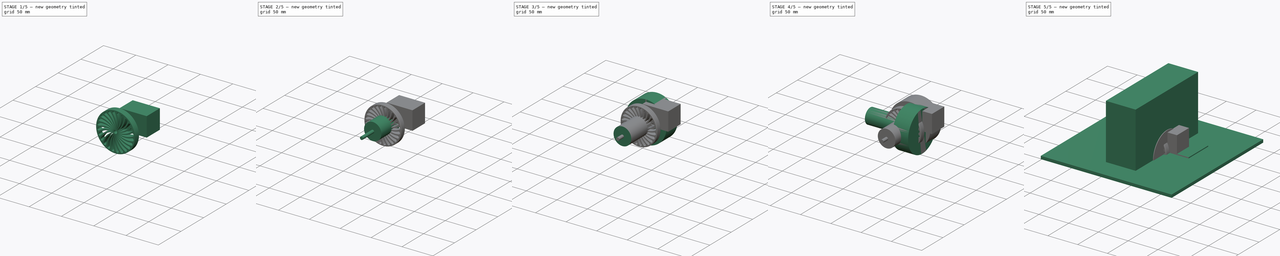
[diagram: build sequence overview — one tinted view per stage of 5, left to right]
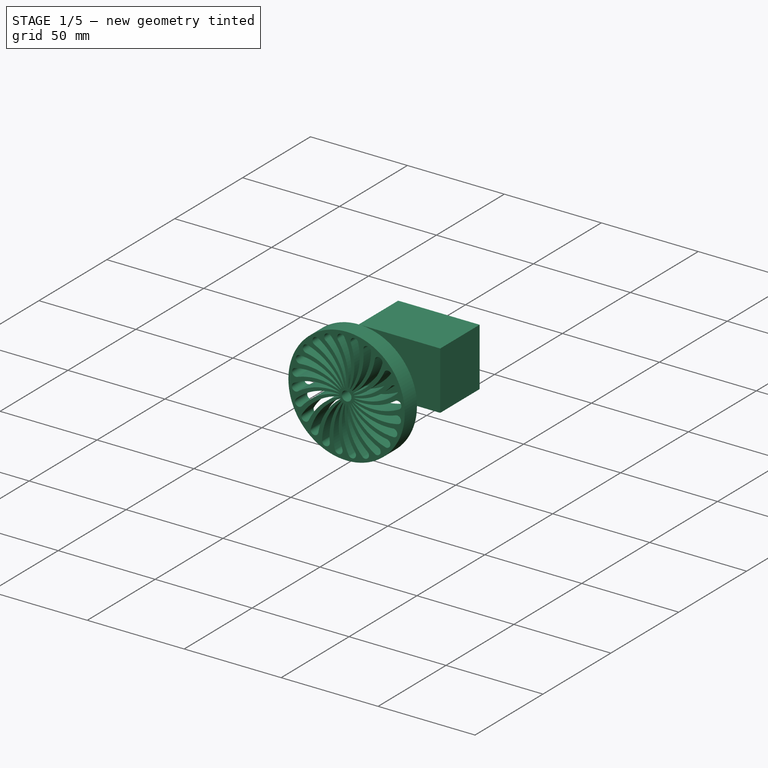
[diagram: stage 1 of 5 — iso view after this stage's code; geometry added in this stage tinted green]
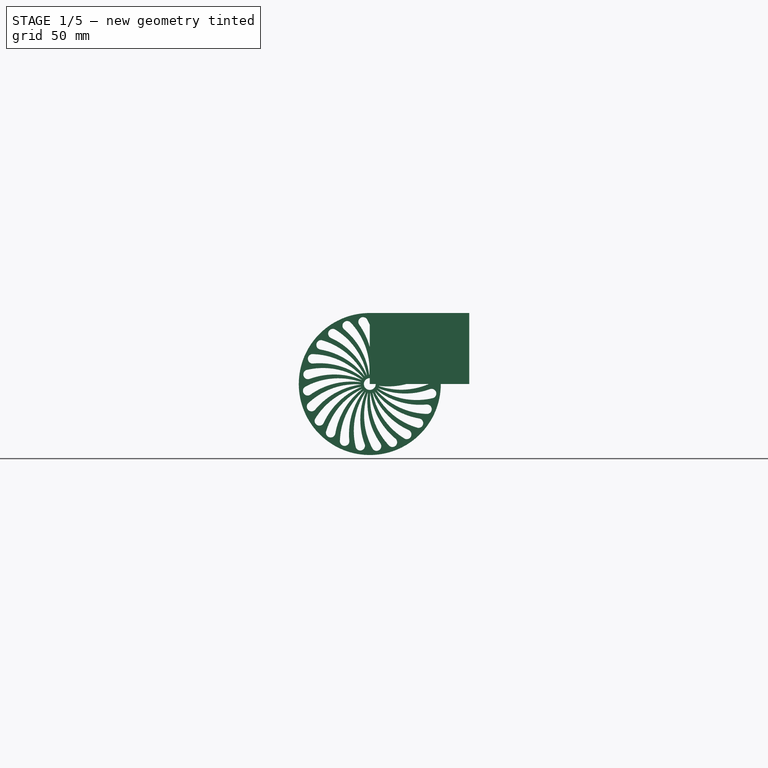
[diagram: stage 1 of 5 — front view after this stage's code; geometry added in this stage tinted green]
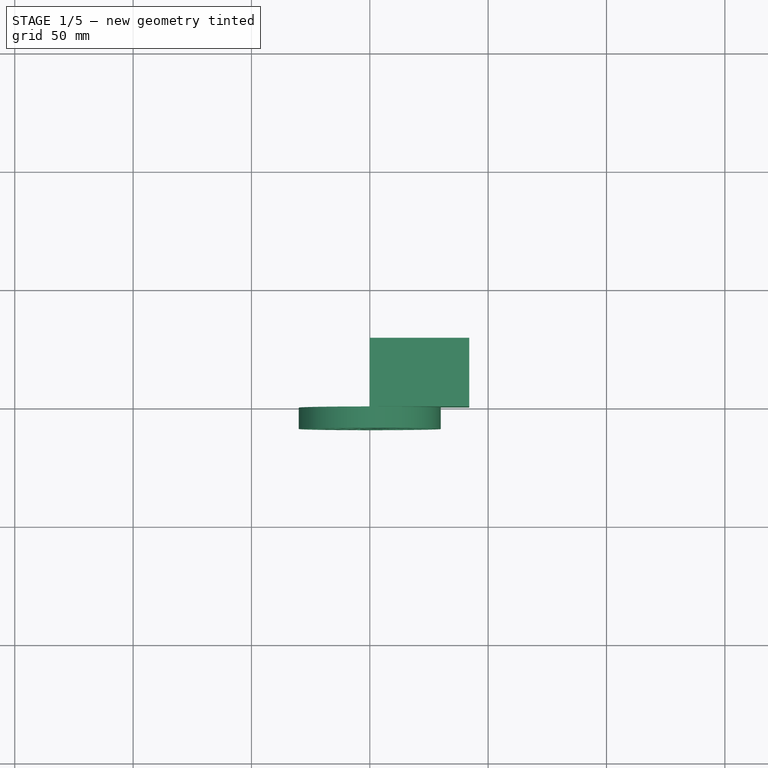
[diagram: stage 1 of 5 — top view after this stage's code; geometry added in this stage tinted green]
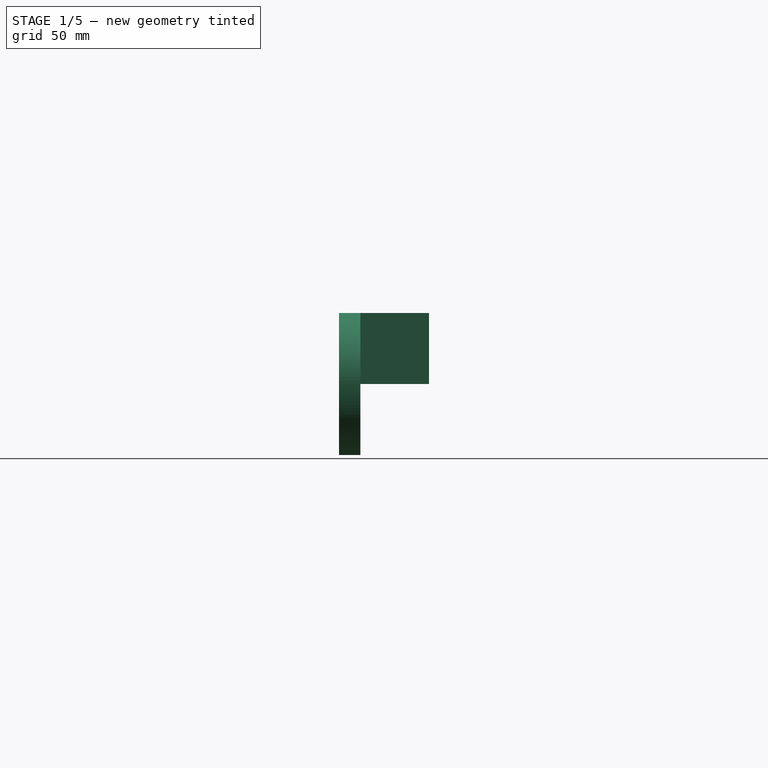
[diagram: stage 1 of 5 — right view after this stage's code; geometry added in this stage tinted green]
FCSTD DOCUMENT  (FreeCAD 1.0RUnknown)
Label: common-components
License: All rights reserved
LicenseURL: https://en.wikipedia.org/wiki/All_rights_reserved
objects: Sketcher::SketchObject×24, PartDesign::Pad×17, PartDesign::Body×9, PartDesign::Pocket×7, App::Part×7, Spreadsheet::Sheet×7, PartDesign::Plane×1, PartDesign::PolarPattern×1, PartDesign::Fillet×1, App::Link×1
note: 135 computed .brp shape members not serialized (recipe doc carries the construction recipe); baked Part::Feature solids carry a one-line shape summary decoded from their .brp

FEATURE [PartDesign::Body] Body014  label="BL Motor drone 1"
  AllowCompound = false
  Group = -> [Sketch052,Pad031,Sketch053,Pad032,Sketch054,Pad033,Sketch055,Pad034]
  Origin = -> Origin022
  Placement = pos=(-1,-63.5,22.5) rot=(0,1,0;0.785398rad)
  Tip = -> Pad034
FEATURE [Sketcher::SketchObject] Sketch061
  ArcFitTolerance = 0
  AttachmentSupport = -> [XZ_Plane024]
  FullyConstrained = true
  MakeInternals = false
  MapMode = 5
  Placement = pos=(0,0,0) rot=(1,0,0;1.5708rad)
  sketch-geometry (1):
    g0: Circle CenterX=0 CenterY=0 CenterZ=0 NormalX=0 NormalY=0 NormalZ=1 AngleXU=0 Radius=2.5
  constraints (2):
    c: Coincident(g0,g-1)
    c: Diameter(g0) = 5
FEATURE [Sketcher::SketchObject] Sketch060
  ArcFitTolerance = 0
  AttachmentSupport = -> [XZ_Plane024]
  FullyConstrained = true
  MakeInternals = false
  MapMode = 5
  Placement = pos=(0,0,0) rot=(1,0,0;1.5708rad)
  expr: Constraints[13] = <<drone_motor_dim>>.wheel_diameter / 2
  expr: Constraints[3] = <<drone_motor_dim>>.wheel_diameter
  sketch-geometry (12):
    g0: Circle [constr] CenterX=0 CenterY=0 CenterZ=0 NormalX=0 NormalY=0 NormalZ=1 AngleXU=0 Radius=30
    g1: ArcOfCircle CenterX=30 CenterY=0 CenterZ=0 NormalX=0 NormalY=0 NormalZ=1 AngleXU=0 Radius=30 StartAngle=3.27249 EndAngle=4.01895
    g2: LineSegment [constr] StartX=10.8245 StartY=-23.0716 StartZ=0 EndX=8.26777 EndY=-26.1478 EndZ=0
    g3: LineSegment [constr] StartX=10.8245 StartY=-23.0716 StartZ=0 EndX=30 EndY=0 EndZ=0
    g4: LineSegment [constr] StartX=30 StartY=0 StartZ=0 EndX=0.256654 EndY=-3.91579 EndZ=0
    g5: LineSegment [constr] StartX=0.256654 StartY=-3.91579 StartZ=0 EndX=0.15751 EndY=-3.92884 EndZ=0
    g6: ArcOfCircle CenterX=9.54613 CenterY=-24.6097 CenterZ=0 NormalX=0 NormalY=0 NormalZ=1 AngleXU=0 Radius=2 StartAngle=4.01895 EndAngle=7.16055
    g7: ArcOfCircle [constr] CenterX=30 CenterY=0 CenterZ=0 NormalX=0 NormalY=0 NormalZ=1 AngleXU=0 Radius=32 StartAngle=4.01895 EndAngle=4.14985
    g8: ArcOfCircle [constr] CenterX=30 CenterY=0 CenterZ=0 NormalX=0 NormalY=0 NormalZ=1 AngleXU=0 Radius=30.1 StartAngle=3.14159 EndAngle=3.27249
    g9: LineSegment [constr] StartX=12.9333 StartY=-27.069 StartZ=0 EndX=30 EndY=0 EndZ=0
    g10: ArcOfCircle CenterX=29.4271 CenterY=-5.83469 CenterZ=0 NormalX=0 NormalY=0 NormalZ=1 AngleXU=0 Radius=29.3316 StartAngle=3.07657 EndAngle=3.90659
    g11: ArcOfCircle CenterX=0.207082 CenterY=-3.92231 CenterZ=0 NormalX=0 NormalY=0 NormalZ=1 AngleXU=0 Radius=0.05 StartAngle=0.1309 EndAngle=3.27249
  constraints (34):
    c: Coincident(g0,g-1)
    c: PointOnObject(g1,g0)
    c: PointOnObject(g1,g-1)
    c: Diameter(g0) = 60
    c: Coincident(g2,g1)
    c: Coincident(g3,g1)
    c: Coincident(g3,g1)
    c: Parallel(g3,g2)
    c: Distance(g2) = 4
    c: Coincident(g4,g1)
    c: Coincident(g4,g1)
    c: Coincident(g5,g1)
    c: Parallel(g5,g4)
    c: Distance(g4) = 30
    c: Coincident(g6,g1)
    c: Coincident(g7,g1)
    c: Coincident(g7,g6)
    c: PointOnObject(g7,g0)
    c: Coincident(g8,g1)
    c: PointOnObject(g8,g-1)
    c: Angle(g-1,g4) = 0.1309
    c: Coincident(g9,g7)
    c: Coincident(g9,g1)
    c: Angle(g3,g9) = 0.1309
    c: PointOnObject(g10,g0)
    c: Coincident(g10,g8)
    c: Coincident(g10,g6)
    c: Coincident(g2,g6)
    c: Coincident(g10,g5)
    c: Distance(g5) = 0.1
    c: PointOnObject(g6,g2)
    c: Coincident(g11,g10)
    c: Coincident(g11,g1)
    c: PointOnObject(g11,g5)
FEATURE [Sketcher::SketchObject] Sketch059
  ArcFitTolerance = 0
  AttachmentSupport = -> [XZ_Plane024]
  FullyConstrained = true
  MakeInternals = false
  MapMode = 5
  Placement = pos=(0,0,0) rot=(1,0,0;1.5708rad)
  expr: Constraints[1] = <<drone_motor_dim>>.wheel_diameter
  sketch-geometry (1):
    g0: Circle CenterX=0 CenterY=0 CenterZ=0 NormalX=0 NormalY=0 NormalZ=1 AngleXU=0 Radius=30
  constraints (2):
    c: Coincident(g0,g-1)
    c: Diameter(g0) = 60
FEATURE [PartDesign::Pad] Pad036
  Direction = (0,-1,2e-16)
  Length = 9
  Length2 = 10
  Placement = pos=(0,0,0) rot=(1,0,0;1.5708rad)
  Profile = -> Sketch059
  ReferenceAxis = -> Sketch059 [N_Axis]
  Suppressed = false
  Type = 0
  expr: Length = <<drone_motor_dim>>.wheel_width_center
FEATURE [PartDesign::Pocket] Pocket022
  BaseFeature = -> Pad036
  Direction = (0,1,-2e-16)
  Length = 100
  Length2 = 5
  Placement = pos=(0,0,0) rot=(1,0,0;1.5708rad)
  Profile = -> Sketch060
  ReferenceAxis = -> Sketch060 [N_Axis]
  Reversed = true
  Suppressed = false
  Type = 0
FEATURE [PartDesign::PolarPattern] PolarPattern
  Angle = 360
  Axis = -> Sketch060 [N_Axis]
  BaseFeature = -> Pocket022
  Mode = 0
  Occurrences = 24
  Offset = 120
  Originals = -> [Pocket022]
  Placement = pos=(0,0,0) rot=(1,0,0;1.5708rad)
  Suppressed = false
  TransformMode = 0
FEATURE [PartDesign::Pocket] Pocket023
  BaseFeature = -> PolarPattern
  Direction = (0,1,-2e-16)
  Length = 100
  Length2 = 5
  Placement = pos=(0,0,0) rot=(1,0,0;1.5708rad)
  Profile = -> Sketch061
  ReferenceAxis = -> Sketch061 [N_Axis]
  Reversed = true
  Suppressed = false
  Type = 0
FEATURE [PartDesign::Body] Body007  label="ESP32 module"
  AllowCompound = false
  Group = -> [Sketch023,Pad016]
  Origin = -> Origin013
  Tip = -> Pad016
FEATURE [App::Part] Part005  label="PCB"
  Group = -> [Body006,Body007]
  Origin = -> Origin011
  Placement = pos=(66,42.5,0) rot=(0,0,1;0rad)
FEATURE [Spreadsheet::Sheet] Spreadsheet001  label="battery_dim"
  cells = A1='Width; B1(width)=50; C1='mm; A2='Length; B2(length)=150; C2='mm; A3='Height; B3(height)=93; C3='mm; A4='Tolerance; B4(tolerance)=1; C4='mm
FEATURE [App::Part] Part002  label="Battery"
  Group = -> [Body001,Link,Spreadsheet001]
  Origin = -> Origin003
  Placement = pos=(-180,-136,0) rot=(0,0,1;0rad)
FEATURE [Spreadsheet::Sheet] Spreadsheet002  label="dc_motor_dim"
  cells = A1='Wheel width; B1(wheel_width)=26; C1='mm; A2='Wheel diameter; B2(wheel_diameter)=67; C2='mm; A3='Wheel circumference; B3(wheel_circumference)==pi * wheel_diameter; C3='mm; A4='Wheel tolerance; B4(wheel_tolerance)=5; C4='mm; A5='Wheel bracket distance; B5(wheel_bracket_distance)=5; C5='mm; A6='Bracket thickness; B6(bracket_thickness)=2; C6='mm; A7='Bracket width; B7(bracket_width)==motor_diameter * 1; C7='mm; A8='Bracket length; B8(bracket_length)=30; C8='mm; A9='Bracket motor distance; B9(bracket_motor_distance)=5; C9='mm; A10='Bracket hole width; B10(bracket_hole_width)=16; C10='mm; A11='Bracket hole length (DC); B11(bracket_hole_length)=14; C11='mm; A12='Bracket hole diameter; B12(bracket_hole_diameter)=4; C12='mm; A13='Bracket screw diameter; B13(bracket_screw_diameter)=3; C13='mm; A14='Bracket nut size; B14(bracket_nut_size)=6; C14='mm; A15='Motor diameter; B15(motor_diameter)=25; C15='mm; A16='Motor length; B16(motor_length)=60; C16='mm; A17='Motor rpm; B17(motor_rpm)=280; C17='rpm; A18='Speed; B18(max_speed)==wheel_circumference / 1000 * motor_rpm / 60; C18='m/s
FEATURE [App::Part] Part  label="DC motor"
  Group = -> [Body002,Spreadsheet002]
  Origin = -> Origin025
  Placement = pos=(0,-42.5,0) rot=(0,0,1;0rad)
FEATURE [Spreadsheet::Sheet] Spreadsheet003  label="ender3_dim"
  cells = A1='Width; B1(width)=220; C1='mm; A2='Height; B2(height)=220; C2='mm; A3='Depth; B3(depth)=250; C3='mm
FEATURE [App::Part] Part004  label="Ender3 buildplate"
  Group = -> [Body005,Spreadsheet003]
  Origin = -> Origin009
  Placement = pos=(-95.5,105,0) rot=(0,0,1;0rad)
FEATURE [Spreadsheet::Sheet] Spreadsheet004  label="driver_dim"
  cells = A1='Width; B1(width)=42; C1='mm; A2='Depth; B2(depth)=29; C2='mm; A3='Height; B3(height)=30; C3='mm
FEATURE [Sketcher::SketchObject] Sketch
  ArcFitTolerance = 1e-06
  AttachmentSupport = -> [XY_Plane028]
  FullyConstrained = true
  MakeInternals = false
  MapMode = 5
  expr: Constraints[10] = <<driver_dim>>.width
  expr: Constraints[9] = <<driver_dim>>.depth
  sketch-geometry (4):
    g0: LineSegment StartX=0 StartY=0 StartZ=0 EndX=42 EndY=0 EndZ=0
    g1: LineSegment StartX=42 StartY=0 StartZ=0 EndX=42 EndY=29 EndZ=0
    g2: LineSegment StartX=42 StartY=29 StartZ=0 EndX=0 EndY=29 EndZ=0
    g3: LineSegment StartX=0 StartY=29 StartZ=0 EndX=0 EndY=0 EndZ=0
  constraints (11):
    c: Coincident(g0,g1)
    c: Coincident(g1,g2)
    c: Coincident(g2,g3)
    c: Coincident(g3,g0)
    c: Horizontal(g0)
    c: Horizontal(g2)
    c: Vertical(g1)
    c: Vertical(g3)
    c: Coincident(g0,g-1)
    c: DistanceY(g1,g1) = 29
    c: DistanceX(g2,g2) = 42
FEATURE [PartDesign::Pad] Pad
  Direction = (0,0,1)
  Length = 30
  Length2 = 10
  Profile = -> Sketch
  ReferenceAxis = -> Sketch [N_Axis]
  Refine = true
  Suppressed = false
  Type = 0
  expr: Length = <<driver_dim>>.height
FEATURE [PartDesign::Body] Body
  AllowCompound = false
  Group = -> [Sketch,Pad]
  Origin = -> Origin028
  Tip = -> Pad
FEATURE [App::Part] Part008  label="BL motor driver"
  Group = -> [Body,Spreadsheet004]
  Origin = -> Origin027
  Placement = pos=(75.5,136,0) rot=(0,0,1;0rad)
FEATURE [Spreadsheet::Sheet] Spreadsheet005  label="bl_motor_dim"
  cells = A1='Bracket hole length; B1(bracket_hole_length)=19; C1='mm; A2='Bracket hole width; B2(bracket_hole_width)=16; C2='mm; A3='Bracket thickness; B3(bracket_thickness)=2; C3='mm; A4='Bracket screw diameter; B4(bracket_screw_diameter)=3; C4='mm; A5='BL motor diameter; B5(motor_diameter)=29; C5='mm; A6='Motor length; B6(motor_length)=47; C6='mm; A7='Wheel width; B7(wheel_width)=26; C7='mm; A8='Wheel diameter; B8(wheel_diameter)=67; C8='mm; A9='Wheel circumference; B9(wheel_circumference)==pi * wheel_diameter; C9='mm; A10='Wheel tolerance; B10(wheel_tolerance)=5; C10='mm
FEATURE [App::Part] Part006  label="BL motor car"
  Group = -> [Body010,Spreadsheet005]
  Origin = -> Origin
FEATURE [Spreadsheet::Sheet] Spreadsheet006  label="drone_motor_dim"
  cells = A1='Drone motor behind bracket; B1(behind_bracket)=12; C1='mm; A2='Drone bracket width; B2(bracket_width)=31; C2='mm; A3='Drone wheel width center; B3(wheel_width_center)=9; C3='mm; A4='Drone wheel diameter; B4(wheel_diameter)=60; C4='mm; A5='Bracket screw diameter; B5(bracket_screw_diameter)=3; C5='mm; A6='Bracket hole distance drone; B6(bracket_hole_distance)=34; C6='mm
FEATURE [App::Part] Part007  label="Drone motor"
  Group = -> [Body014,Body016,Spreadsheet006]
  Origin = -> Origin026
  Placement = pos=(93,0,0) rot=(0,0,1;0rad)
FEATURE [Spreadsheet::Sheet] Spreadsheet  label="dim"
  cells = A1='Max weight; B1(max_weight)=4; C1='kg; A2='Max diameter; B2(max_diameter)=250; C2='mm; A3='Wall; B3(wall)=4; C3='mm
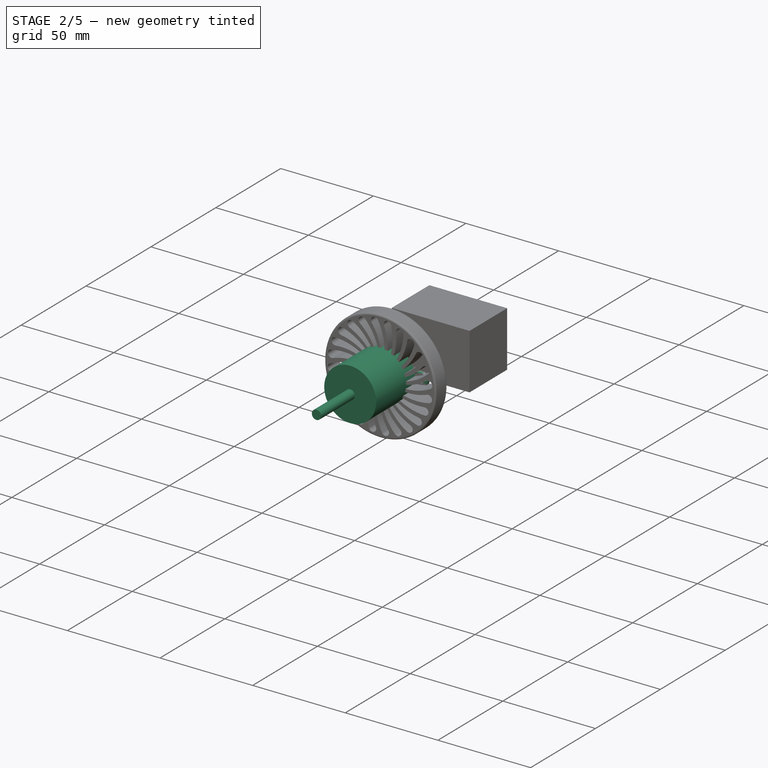
[diagram: stage 2 of 5 — iso view after this stage's code; geometry added in this stage tinted green]
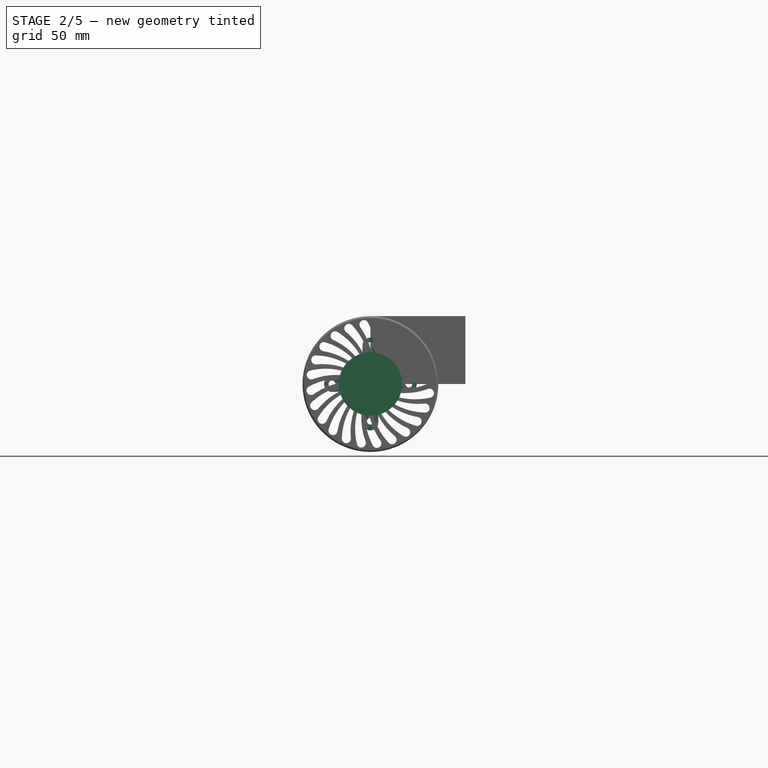
[diagram: stage 2 of 5 — front view after this stage's code; geometry added in this stage tinted green]
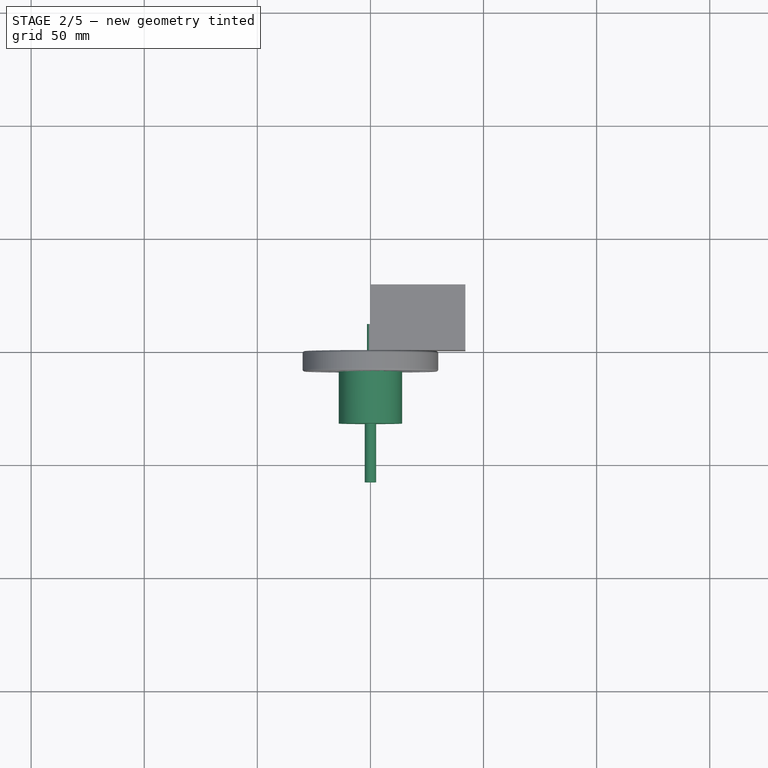
[diagram: stage 2 of 5 — top view after this stage's code; geometry added in this stage tinted green]
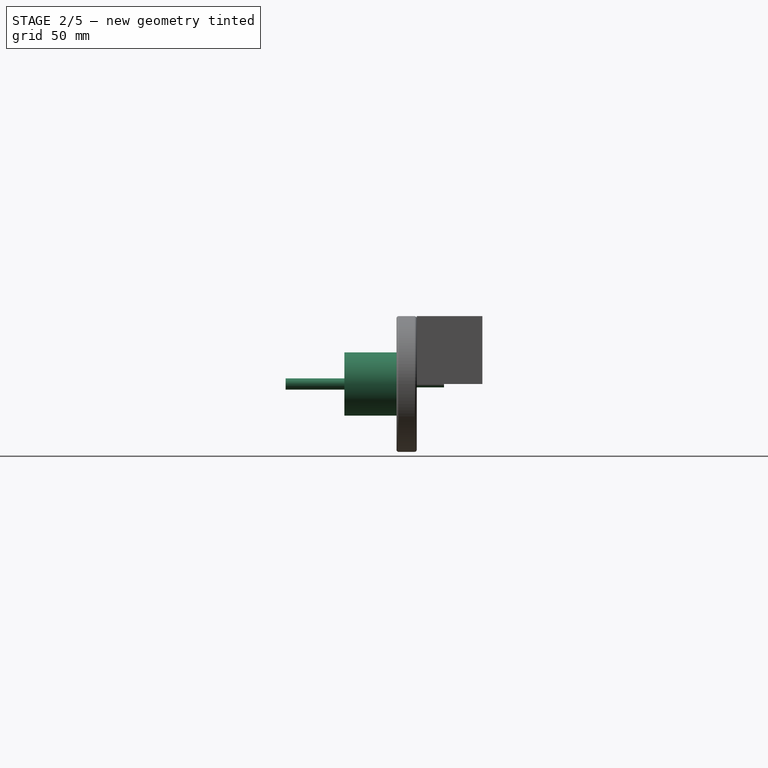
[diagram: stage 2 of 5 — right view after this stage's code; geometry added in this stage tinted green]
FEATURE [PartDesign::Body] Body010  label="BL Motor car 1"
  AllowCompound = false
  Group = -> [Sketch030,Pad018,Sketch031,Pad019,Sketch032,Pocket012,Sketch033,Pad020,DatumPlane002,Sketch034,Pad021,Sketch035,Pocket013,Sketch036,Pocket014]
  Origin = -> Origin016
  Placement = pos=(-1,-113,22.5) rot=(0,0,1;3.14159rad)
  Tip = -> Pocket014
FEATURE [Sketcher::SketchObject] Sketch052
  ArcFitTolerance = 0
  AttachmentSupport = -> [XZ_Plane022]
  FullyConstrained = false
  MakeInternals = false
  MapMode = 5
  Placement = pos=(0,0,0) rot=(1,0,0;1.5708rad)
  expr: Constraints[97] = <<drone_motor_dim>>.bracket_screw_diameter
  sketch-geometry (44):
    g0: Circle [constr] CenterX=0 CenterY=0 CenterZ=0 NormalX=0 NormalY=0 NormalZ=1 AngleXU=0 Radius=20.5
    g1: ArcOfCircle CenterX=0 CenterY=16.9985 CenterZ=0 NormalX=0 NormalY=0 NormalZ=1 AngleXU=0 Radius=3.50149 StartAngle=0.0291986 EndAngle=3.11239
    g2: ArcOfCircle CenterX=0 CenterY=-16.9985 CenterZ=0 NormalX=0 NormalY=0 NormalZ=1 AngleXU=0 Radius=3.50149 StartAngle=3.14271 EndAngle=6.25399
    g3: ArcOfCircle CenterX=-17 CenterY=0 CenterZ=0 NormalX=0 NormalY=0 NormalZ=1 AngleXU=0 Radius=3.5 StartAngle=1.5708 EndAngle=4.71239
    g4: ArcOfCircle CenterX=17 CenterY=0 CenterZ=0 NormalX=0 NormalY=0 NormalZ=1 AngleXU=0 Radius=3.5 StartAngle=4.71238 EndAngle=7.85398
    g5: GeomPoint [constr] X=20.5 Y=0 Z=0
    g6: GeomPoint [constr] X=-20.5 Y=-3.4401e-06 Z=0
    g7: GeomPoint [constr] X=-0.00272726 Y=-20.5 Z=0
    g8: GeomPoint [constr] X=-0.000240899 Y=20.5 Z=0
    g9: LineSegment [constr] StartX=-3.5 StartY=17.1007 StartZ=0 EndX=3.5 EndY=17.1007 EndZ=0
    g10: LineSegment [constr] StartX=-17 StartY=3.5 StartZ=0 EndX=-17 EndY=-3.5 EndZ=0
    g11: LineSegment StartX=-8.5 StartY=3.5 StartZ=0 EndX=-17 EndY=3.5 EndZ=0
    g12: LineSegment StartX=-3.5 StartY=17.1007 StartZ=0 EndX=-3.5 EndY=8.5 EndZ=0
    g13: LineSegment StartX=3.5 StartY=8.5 StartZ=0 EndX=3.5 EndY=17.1007 EndZ=0
    g14: LineSegment StartX=17 StartY=3.5 StartZ=0 EndX=8.5 EndY=3.5 EndZ=0
    g15: LineSegment [constr] StartX=3.5 StartY=3.5 StartZ=0 EndX=-3.5 EndY=3.5 EndZ=0
    g16: LineSegment StartX=8.5 StartY=-3.5 StartZ=0 EndX=17 EndY=-3.5 EndZ=0
    g17: LineSegment StartX=-17 StartY=-3.5 StartZ=0 EndX=-8.50149 EndY=-3.5 EndZ=0
    g18: LineSegment [constr] StartX=-3.50149 StartY=-3.5 StartZ=0 EndX=3.5 EndY=-3.5 EndZ=0
    g19: LineSegment [constr] StartX=-3.5 StartY=3.5 StartZ=0 EndX=-3.5 EndY=-3.5 EndZ=0
    g20: LineSegment StartX=-3.50149 StartY=-8.5 StartZ=0 EndX=-3.50149 EndY=-17.0024 EndZ=0
    g21: LineSegment StartX=3.5 StartY=-17.1007 StartZ=0 EndX=3.5 EndY=-8.5 EndZ=0
    g22: LineSegment [constr] StartX=3.5 StartY=-3.5 StartZ=0 EndX=3.5 EndY=3.5 EndZ=0
    g23: ArcOfCircle CenterX=-8.5 CenterY=8.5 CenterZ=0 NormalX=0 NormalY=0 NormalZ=1 AngleXU=0 Radius=5 StartAngle=4.71239 EndAngle=6.28319
    g24: ArcOfCircle CenterX=8.5 CenterY=8.5 CenterZ=0 NormalX=0 NormalY=0 NormalZ=1 AngleXU=0 Radius=5 StartAngle=3.14159 EndAngle=4.71239
    g25: ArcOfCircle CenterX=8.5 CenterY=-8.5 CenterZ=0 NormalX=0 NormalY=0 NormalZ=1 AngleXU=0 Radius=5 StartAngle=1.5708 EndAngle=3.14159
    g26: ArcOfCircle CenterX=-8.50149 CenterY=-8.5 CenterZ=0 NormalX=0 NormalY=0 NormalZ=1 AngleXU=0 Radius=5 StartAngle=0 EndAngle=1.5708
    g27: LineSegment [constr] StartX=-8.50149 StartY=-8.5 StartZ=0 EndX=-8.50149 EndY=-3.5 EndZ=0
    g28: LineSegment [constr] StartX=8.5 StartY=-8.5 StartZ=0 EndX=8.5 EndY=-3.5 EndZ=0
    g29: LineSegment [constr] StartX=8.5 StartY=3.5 StartZ=0 EndX=8.5 EndY=8.5 EndZ=0
    g30: LineSegment [constr] StartX=-8.5 StartY=3.5 StartZ=0 EndX=-8.5 EndY=8.5 EndZ=0
    g31: LineSegment [constr] StartX=-8.5 StartY=3.5 StartZ=0 EndX=-3.5 EndY=3.5 EndZ=0
    g32: LineSegment [constr] StartX=-3.5 StartY=8.5 StartZ=0 EndX=-3.5 EndY=3.5 EndZ=0
    g33: LineSegment [constr] StartX=-8.50149 StartY=-3.5 StartZ=0 EndX=-3.50149 EndY=-3.5 EndZ=0
    g34: LineSegment [constr] StartX=3.5 StartY=-3.5 StartZ=0 EndX=8.5 EndY=-3.5 EndZ=0
    g35: LineSegment [constr] StartX=3.5 StartY=3.5 StartZ=0 EndX=8.5 EndY=3.5 EndZ=0
    g36: LineSegment [constr] StartX=3.5 StartY=3.5 StartZ=0 EndX=3.5 EndY=8.5 EndZ=0
    g37: LineSegment [constr] StartX=3.5 StartY=-8.5 StartZ=0 EndX=3.5 EndY=-3.5 EndZ=0
    g38: LineSegment [constr] StartX=-3.50149 StartY=-8.5 StartZ=0 EndX=-3.50149 EndY=-3.5 EndZ=0
    g39: Circle CenterX=0 CenterY=16.9985 CenterZ=0 NormalX=0 NormalY=0 NormalZ=1 AngleXU=0 Radius=1.5
    g40: Circle CenterX=-17 CenterY=0 CenterZ=0 NormalX=0 NormalY=0 NormalZ=1 AngleXU=0 Radius=1.5
    g41: Circle CenterX=17 CenterY=0 CenterZ=0 NormalX=0 NormalY=0 NormalZ=1 AngleXU=0 Radius=1.5
    g42: Circle CenterX=0 CenterY=-16.4205 CenterZ=0 NormalX=0 NormalY=0 NormalZ=1 AngleXU=0 Radius=1.5
    g43: Circle CenterX=0 CenterY=0 CenterZ=0 NormalX=0 NormalY=0 NormalZ=1 AngleXU=0 Radius=5
  constraints (106):
    c: Coincident(g0,g-1)
    c: Diameter(g0) = 41
    c: Coincident(g1,g12) = -1.5708
    c: Coincident(g20,g2) = -1.5708
    c: Coincident(g2,g21) = -1.5708
    c: Coincident(g13,g1) = -1.5708
    c: Equal(g1,g2)
    c: PointOnObject(g1,g-2)
    c: Coincident(g3,g17) = -1.5708
    c: Coincident(g16,g4) = -1.5708
    c: Coincident(g4,g14) = -1.5708
    c: Coincident(g11,g3) = -1.5708
    c: Equal(g3,g4)
    c: PointOnObject(g3,g-1)
    c: PointOnObject(g5,g4)
    c: PointOnObject(g6,g3)
    c: PointOnObject(g7,g2)
    c: PointOnObject(g8,g1)
    c: PointOnObject(g4,g-1)
    c: PointOnObject(g2,g-2)
    c: PointOnObject(g8,g0)
    c: PointOnObject(g7,g0)
    c: PointOnObject(g5,g0)
    c: PointOnObject(g6,g0)
    c: Coincident(g9,g1)
    c: Coincident(g9,g1)
    c: Coincident(g10,g3)
    c: Coincident(g10,g3)
    c: Distance(g10) = 7
    c: Equal(g9,g10)
    c: PointOnObject(g22,g18)
    c: PointOnObject(g18,g22)
    c: PointOnObject(g19,g18)
    c: PointOnObject(g18,g20)
    c: PointOnObject(g15,g19)
    c: PointOnObject(g19,g15)
    c: PointOnObject(g22,g15)
    c: PointOnObject(g15,g22)
    c: Vertical(g13)
    c: Vertical(g12)
    c: Vertical(g20)
    c: Vertical(g21)
    c: Horizontal(g16)
    c: Horizontal(g14)
    c: Horizontal(g11)
    c: Horizontal(g17)
    c: Vertical(g10)
    c: Horizontal(g15)
    c: Horizontal(g18)
    c: PointOnObject(g5,g-1)
    c: PointOnObject(g3,g10)
    c: Tangent(g11,g23) = 1.5708
    c: Tangent(g12,g23) = 1.5708
    c: Tangent(g14,g24) = 1.5708
    c: Tangent(g13,g24) = 1.5708
    c: Tangent(g16,g25) = 1.5708
    c: Tangent(g21,g25) = 1.5708
    c: Tangent(g17,g26) = 1.5708
    c: Tangent(g20,g26) = 1.5708
    c: Coincident(g27,g26)
    c: Coincident(g27,g17)
    c: Coincident(g28,g25)
    c: Coincident(g28,g16)
    c: Coincident(g29,g14)
    c: Coincident(g29,g24)
    c: Coincident(g30,g11)
    c: Coincident(g30,g23)
    c: Distance(g27) = 5
    c: Equal(g30,g29)
    c: Equal(g29,g28)
    c: Equal(g28,g27)
    c: Coincident(g31,g11)
    c: Coincident(g31,g15)
    c: Coincident(g32,g12)
    c: Coincident(g32,g15)
    c: Coincident(g33,g17)
    c: Coincident(g33,g18)
    c: Coincident(g34,g18)
    c: Coincident(g34,g16)
    c: Tangent(g34,g25)
    c: Coincident(g35,g15)
    c: Coincident(g35,g14)
    c: Coincident(g36,g15)
    c: Coincident(g36,g13)
    c: Coincident(g37,g21)
    c: Coincident(g37,g18)
    c: Coincident(g38,g20)
    c: Coincident(g38,g18)
    c: Vertical(g22)
    c: Vertical(g37)
    c: Vertical(g32)
    c: Vertical(g19)
    c: Horizontal(g31)
    c: Vertical(g36)
    c: Horizontal(g33)
    c: Horizontal(g9)
    c: Coincident(g39,g1)
    c: Diameter(g39) = 3
    c: Coincident(g40,g3)
    c: Coincident(g41,g4)
    c: PointOnObject(g42,g-2)
    c: Equal(g42,g41)
    c: Equal(g41,g40)
    c: Equal(g40,g39)
    c: Coincident(g43,g0)
    c: Diameter(g43) = 10
FEATURE [PartDesign::Pad] Pad031  label="bracket"
  Direction = (0,-1,2e-16)
  Length = 2
  Length2 = 10
  Placement = pos=(0,0,0) rot=(1,0,0;1.5708rad)
  Profile = -> Sketch052
  ReferenceAxis = -> Sketch052 [N_Axis]
  Suppressed = false
  Type = 0
FEATURE [Sketcher::SketchObject] Sketch053
  ArcFitTolerance = 0
  AttachmentSupport = -> [Pad031]
  FullyConstrained = true
  MakeInternals = false
  MapMode = 5
  Placement = pos=(0,-2,4e-16) rot=(1,0,0;1.5708rad)
  sketch-geometry (1):
    g0: Circle CenterX=0 CenterY=0 CenterZ=0 NormalX=0 NormalY=0 NormalZ=1 AngleXU=0 Radius=14
  constraints (2):
    c: Coincident(g0,g-1)
    c: Diameter(g0) = 28
FEATURE [PartDesign::Pad] Pad032
  BaseFeature = -> Pad031
  Direction = (0,-1,2e-16)
  Length = 30
  Length2 = 10
  Placement = pos=(0,0,0) rot=(1,0,0;1.5708rad)
  Profile = -> Sketch053
  ReferenceAxis = -> Sketch053 [N_Axis]
  Suppressed = false
  Type = 0
FEATURE [Sketcher::SketchObject] Sketch054
  ArcFitTolerance = 0
  AttachmentSupport = -> [Pad032]
  FullyConstrained = true
  MakeInternals = false
  MapMode = 5
  Placement = pos=(0,-2,4e-16) rot=(-1,0,0;1.5708rad)
  sketch-geometry (1):
    g0: Circle CenterX=0 CenterY=0 CenterZ=0 NormalX=0 NormalY=0 NormalZ=1 AngleXU=0 Radius=1.5
  constraints (2):
    c: Coincident(g0,g-1)
    c: Diameter(g0) = 3
FEATURE [PartDesign::Pad] Pad033
  BaseFeature = -> Pad032
  Direction = (0,1,2e-16)
  Length = 14
  Length2 = 10
  Placement = pos=(0,0,0) rot=(1,0,0;1.5708rad)
  Profile = -> Sketch054
  ReferenceAxis = -> Sketch054 [N_Axis]
  Suppressed = false
  Type = 0
FEATURE [Sketcher::SketchObject] Sketch055
  ArcFitTolerance = 0
  AttachmentSupport = -> [Pad033]
  FullyConstrained = true
  MakeInternals = false
  MapMode = 5
  Placement = pos=(0,-32,7e-15) rot=(1,0,0;1.5708rad)
  sketch-geometry (1):
    g0: Circle CenterX=0 CenterY=0 CenterZ=0 NormalX=0 NormalY=0 NormalZ=1 AngleXU=0 Radius=2.5
  constraints (2):
    c: Coincident(g0,g-1)
    c: Diameter(g0) = 5
FEATURE [PartDesign::Pad] Pad034
  BaseFeature = -> Pad033
  Direction = (0,-1,2e-16)
  Length = 26
  Length2 = 10
  Placement = pos=(0,0,0) rot=(1,0,0;1.5708rad)
  Profile = -> Sketch055
  ReferenceAxis = -> Sketch055 [N_Axis]
  Suppressed = false
  Type = 0
FEATURE [PartDesign::Fillet] Fillet
  Base = -> Pocket023 [Edge2,Edge3]
  BaseFeature = -> Pocket023
  Placement = pos=(0,0,0) rot=(1,0,0;1.5708rad)
  Radius = 1
  SupportTransform = false
  Suppressed = false
  UseAllEdges = false
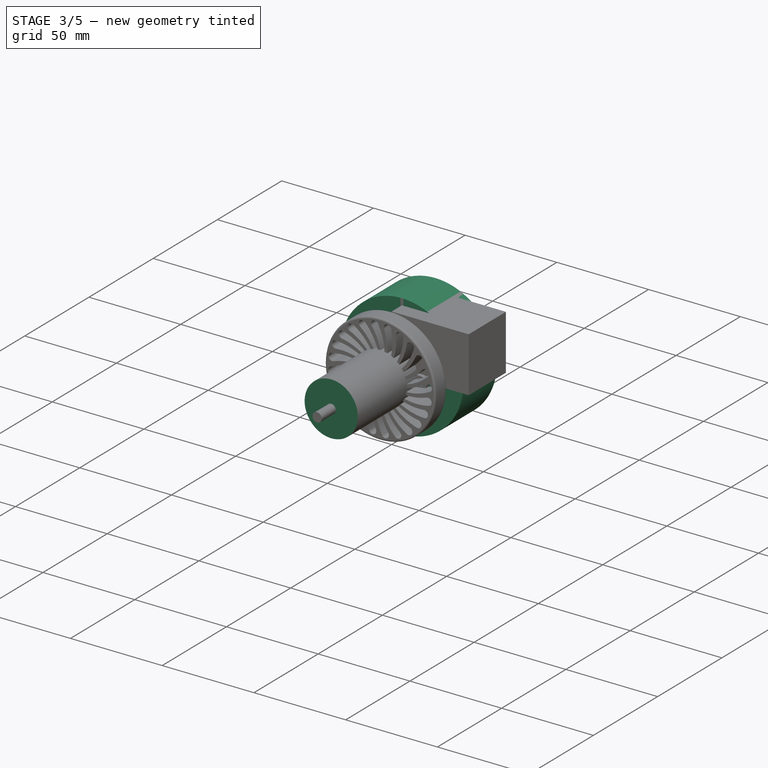
[diagram: stage 3 of 5 — iso view after this stage's code; geometry added in this stage tinted green]
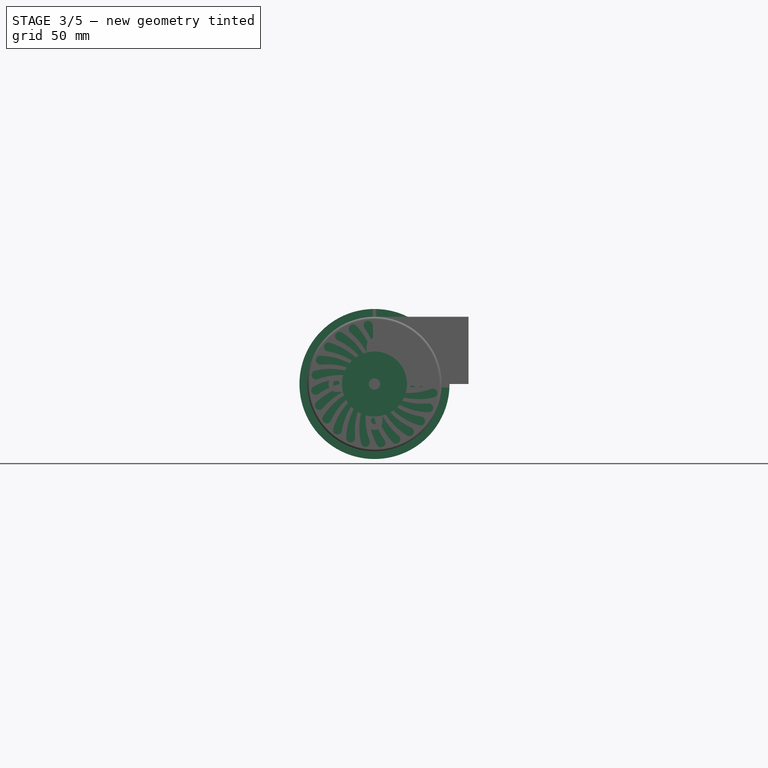
[diagram: stage 3 of 5 — front view after this stage's code; geometry added in this stage tinted green]
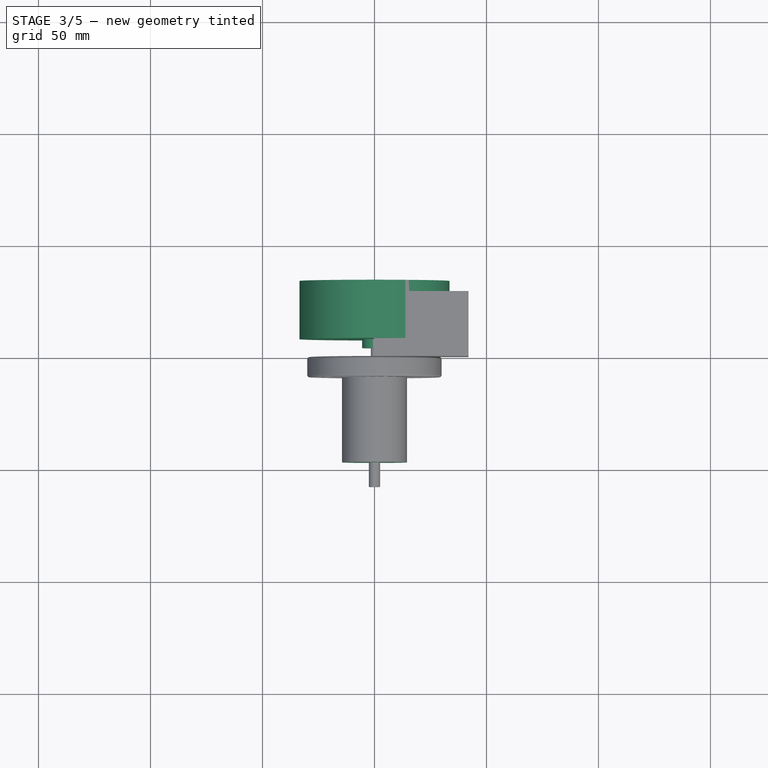
[diagram: stage 3 of 5 — top view after this stage's code; geometry added in this stage tinted green]
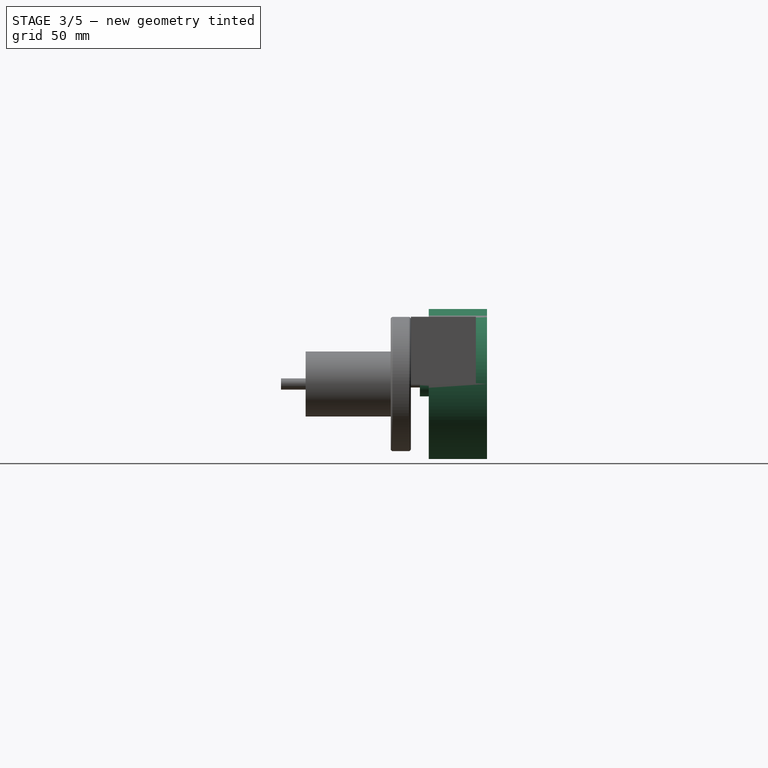
[diagram: stage 3 of 5 — right view after this stage's code; geometry added in this stage tinted green]
FEATURE [PartDesign::Body] Body002  label="DC Motor 1"
  AllowCompound = false
  Group = -> [Sketch002,Pad002,Sketch003,Pad003,Sketch004,Pad004,Sketch005,Pocket,Sketch024,Pocket007]
  Origin = -> Origin005
  Placement = pos=(-87,-84.5,25) rot=(0,0,1;4.71239rad)
  Tip = -> Pocket007
FEATURE [PartDesign::Plane] DatumPlane002
  AttachmentOffset = pos=(0,0,-8) rot=(0,0,1;0rad)
  AttachmentSupport = -> [XZ_Plane016]
  Length = 80.3208
  MapMode = 5
  Placement = pos=(0,8,-1.8e-15) rot=(1,0,0;1.5708rad)
  ResizeMode = 0
  Width = 80.3553
FEATURE [Sketcher::SketchObject] Sketch036
  ArcFitTolerance = 0
  AttachmentSupport = -> [DatumPlane002]
  FullyConstrained = true
  MakeInternals = false
  MapMode = 5
  Placement = pos=(0,8,-1.8e-15) rot=(1,0,0;1.5708rad)
  sketch-geometry (2):
    g0: Circle CenterX=0 CenterY=0 CenterZ=0 NormalX=0 NormalY=0 NormalZ=1 AngleXU=0 Radius=23
    g1: Circle CenterX=0 CenterY=0 CenterZ=0 NormalX=0 NormalY=0 NormalZ=1 AngleXU=0 Radius=5.5
  constraints (4):
    c: Coincident(g0,g-1)
    c: Diameter(g0) = 46
    c: Coincident(g1,g0)
    c: Diameter(g1) = 11
FEATURE [Sketcher::SketchObject] Sketch035
  ArcFitTolerance = 0
  AttachmentSupport = -> [XZ_Plane016]
  FullyConstrained = true
  MakeInternals = false
  MapMode = 5
  Placement = pos=(0,0,0) rot=(1,0,0;1.5708rad)
  expr: Constraints[15] = <<bl_motor_dim>>.bracket_screw_diameter
  expr: Constraints[16] = <<bl_motor_dim>>.bracket_hole_width
  expr: Constraints[17] = <<bl_motor_dim>>.bracket_hole_length
  sketch-geometry (8):
    g0: Circle CenterX=-1.994e-13 CenterY=-9.5 CenterZ=0 NormalX=0 NormalY=0 NormalZ=1 AngleXU=0 Radius=1.5
    g1: Circle CenterX=8 CenterY=0 CenterZ=0 NormalX=0 NormalY=0 NormalZ=1 AngleXU=0 Radius=1.5
    g2: Circle CenterX=0 CenterY=9.5 CenterZ=0 NormalX=0 NormalY=0 NormalZ=1 AngleXU=0 Radius=1.5
    g3: Circle CenterX=-8 CenterY=0 CenterZ=0 NormalX=0 NormalY=0 NormalZ=1 AngleXU=0 Radius=1.5
    g4: Circle [constr] CenterX=0 CenterY=0 CenterZ=0 NormalX=0 NormalY=0 NormalZ=1 AngleXU=0 Radius=9.5
    g5: Circle [constr] CenterX=0 CenterY=0 CenterZ=0 NormalX=0 NormalY=0 NormalZ=1 AngleXU=0 Radius=8
    g6: LineSegment [constr] StartX=-1.994e-13 StartY=-9.5 StartZ=0 EndX=0 EndY=9.5 EndZ=0
    g7: LineSegment [constr] StartX=-8 StartY=0 StartZ=0 EndX=8 EndY=0 EndZ=0
  constraints (20):
    c: Coincident(g4,g-1)
    c: PointOnObject(g0,g4)
    c: Coincident(g5,g4)
    c: PointOnObject(g3,g5)
    c: Coincident(g6,g0)
    c: Coincident(g6,g2)
    c: Coincident(g7,g3)
    c: Coincident(g7,g1)
    c: PointOnObject(g1,g5)
    c: PointOnObject(g2,g4)
    c: PointOnObject(g4,g6)
    c: PointOnObject(g4,g7)
    c: Equal(g1,g3)
    c: Equal(g0,g2)
    c: Equal(g0,g1)
    c: Diameter(g0) = 3
    c: Diameter(g5) = 16
    c: Diameter(g4) = 19
    c: PointOnObject(g1,g-1)
    c: PointOnObject(g2,g-2)
FEATURE [Sketcher::SketchObject] Sketch034
  ArcFitTolerance = 0
  AttachmentSupport = -> [DatumPlane002]
  FullyConstrained = true
  MakeInternals = false
  MapMode = 5
  Placement = pos=(0,8,-1.8e-15) rot=(1,0,0;1.5708rad)
  expr: Constraints[1] = <<bl_motor_dim>>.wheel_diameter
  sketch-geometry (1):
    g0: Circle CenterX=0 CenterY=0 CenterZ=0 NormalX=0 NormalY=0 NormalZ=1 AngleXU=0 Radius=33.5
  constraints (2):
    c: Coincident(g0,g-1)
    c: Diameter(g0) = 67
FEATURE [Sketcher::SketchObject] Sketch032
  ArcFitTolerance = 0
  AttachmentSupport = -> [YZ_Plane016]
  FullyConstrained = true
  MakeInternals = false
  MapMode = 5
  Placement = pos=(0,0,0) rot=(0.57735,0.57735,0.57735;2.0944rad)
  expr: Constraints[10] = 3.18 / 2
  sketch-geometry (4):
    g0: LineSegment StartX=3 StartY=1.21412 StartZ=0 EndX=15 EndY=1.21412 EndZ=0
    g1: LineSegment StartX=15 StartY=1.21412 StartZ=0 EndX=15 EndY=1.59 EndZ=0
    g2: LineSegment StartX=15 StartY=1.59 StartZ=0 EndX=2.86319 EndY=1.59 EndZ=0
    g3: LineSegment StartX=2.86319 StartY=1.59 StartZ=0 EndX=3 EndY=1.21412 EndZ=0
  constraints (12):
    c: Horizontal(g0)
    c: Coincident(g1,g0)
    c: Coincident(g2,g1)
    c: Horizontal(g2)
    c: Coincident(g3,g2)
    c: Coincident(g3,g0)
    c: DistanceX(g0,g0) = 12
    c: Distance(g3) = 0.4
    c: Angle(g0,g3) = 1.91986
    c: Vertical(g1)
    c: DistanceY(g-1,g2) = 1.59
    c: DistanceX(g-1,g0) = 15
FEATURE [Sketcher::SketchObject] Sketch031
  ArcFitTolerance = 0
  AttachmentSupport = -> [XZ_Plane016]
  FullyConstrained = true
  MakeInternals = false
  MapMode = 5
  Placement = pos=(0,0,0) rot=(1,0,0;1.5708rad)
  sketch-geometry (1):
    g0: Circle CenterX=0 CenterY=0 CenterZ=0 NormalX=0 NormalY=0 NormalZ=1 AngleXU=0 Radius=1.5875
  constraints (2):
    c: Coincident(g0,g-1)
    c: Diameter(g0) = 3.175
FEATURE [Sketcher::SketchObject] Sketch030
  ArcFitTolerance = 0
  AttachmentSupport = -> [XZ_Plane016]
  FullyConstrained = true
  MakeInternals = false
  MapMode = 5
  Placement = pos=(0,0,0) rot=(1,0,0;1.5708rad)
  expr: Constraints[1] = <<bl_motor_dim>>.motor_diameter
  sketch-geometry (1):
    g0: Circle CenterX=0 CenterY=0 CenterZ=0 NormalX=0 NormalY=0 NormalZ=1 AngleXU=0 Radius=14.5
  constraints (2):
    c: Coincident(g0,g-1)
    c: Diameter(g0) = 29
FEATURE [PartDesign::Pad] Pad018
  Direction = (0,-1,2e-16)
  Length = 47
  Length2 = 10
  Placement = pos=(0,0,0) rot=(1,0,0;1.5708rad)
  Profile = -> Sketch030
  ReferenceAxis = -> Sketch030 [N_Axis]
  Suppressed = false
  Type = 0
  expr: Length = <<bl_motor_dim>>.motor_length
FEATURE [PartDesign::Pad] Pad019
  BaseFeature = -> Pad018
  Direction = (0,-1,2e-16)
  Length = 15
  Length2 = 10
  Placement = pos=(0,0,0) rot=(1,0,0;1.5708rad)
  Profile = -> Sketch031
  ReferenceAxis = -> Sketch031 [N_Axis]
  Reversed = true
  Suppressed = false
  Type = 0
FEATURE [PartDesign::Pocket] Pocket012
  BaseFeature = -> Pad019
  Direction = (-1,0,0)
  Length = 10
  Length2 = 5
  Midplane = true
  Placement = pos=(0,0,0) rot=(1,0,0;1.5708rad)
  Profile = -> Sketch032
  ReferenceAxis = -> Sketch032 [N_Axis]
  Suppressed = false
  Type = 0
FEATURE [Sketcher::SketchObject] Sketch033
  ArcFitTolerance = 0
  AttachmentSupport = -> [Pocket012]
  FullyConstrained = true
  MakeInternals = false
  MapMode = 5
  Placement = pos=(0,15,-3.3e-15) rot=(-1,0,0;1.5708rad)
  sketch-geometry (1):
    g0: Circle CenterX=0 CenterY=0 CenterZ=0 NormalX=0 NormalY=0 NormalZ=1 AngleXU=0 Radius=5.5
  constraints (2):
    c: Coincident(g0,g-1)
    c: Diameter(g0) = 11
FEATURE [PartDesign::Pad] Pad020
  BaseFeature = -> Pocket012
  Direction = (0,1,2e-16)
  Length = 11
  Length2 = 10
  Placement = pos=(0,0,0) rot=(1,0,0;1.5708rad)
  Profile = -> Sketch033
  ReferenceAxis = -> Sketch033 [N_Axis]
  Reversed = true
  Suppressed = false
  Type = 0
FEATURE [PartDesign::Pad] Pad021
  BaseFeature = -> Pad020
  Direction = (0,-1,2e-16)
  Length = 26
  Length2 = 10
  Placement = pos=(0,0,0) rot=(1,0,0;1.5708rad)
  Profile = -> Sketch034
  ReferenceAxis = -> Sketch034 [N_Axis]
  Reversed = true
  Suppressed = false
  Type = 0
  expr: Length = <<bl_motor_dim>>.wheel_width
FEATURE [PartDesign::Pocket] Pocket013
  BaseFeature = -> Pad021
  Direction = (0,1,-2e-16)
  Length = 7.5
  Length2 = 5
  Placement = pos=(0,0,0) rot=(1,0,0;1.5708rad)
  Profile = -> Sketch035
  ReferenceAxis = -> Sketch035 [N_Axis]
  Reversed = true
  Suppressed = false
  Type = 0
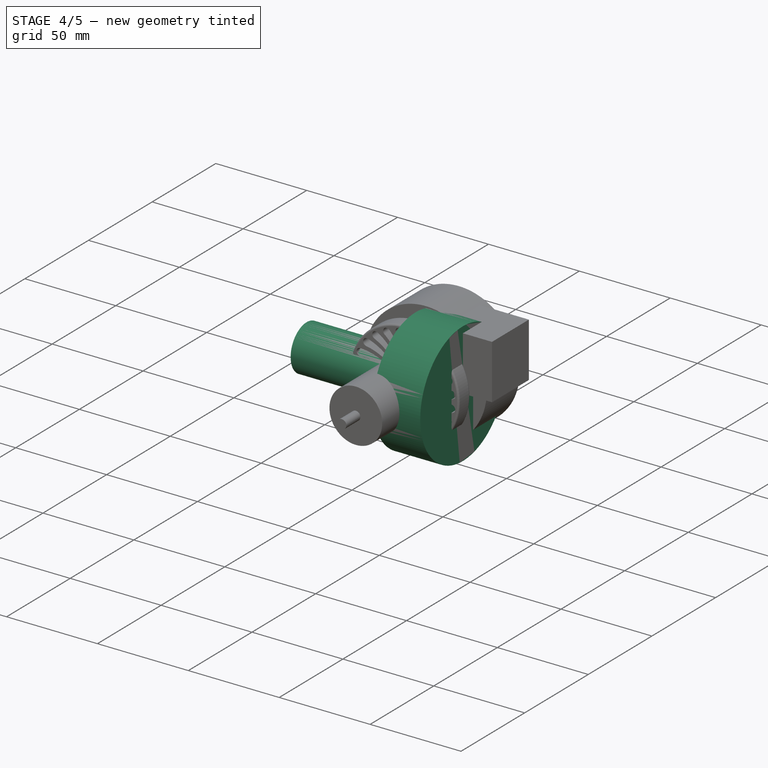
[diagram: stage 4 of 5 — iso view after this stage's code; geometry added in this stage tinted green]
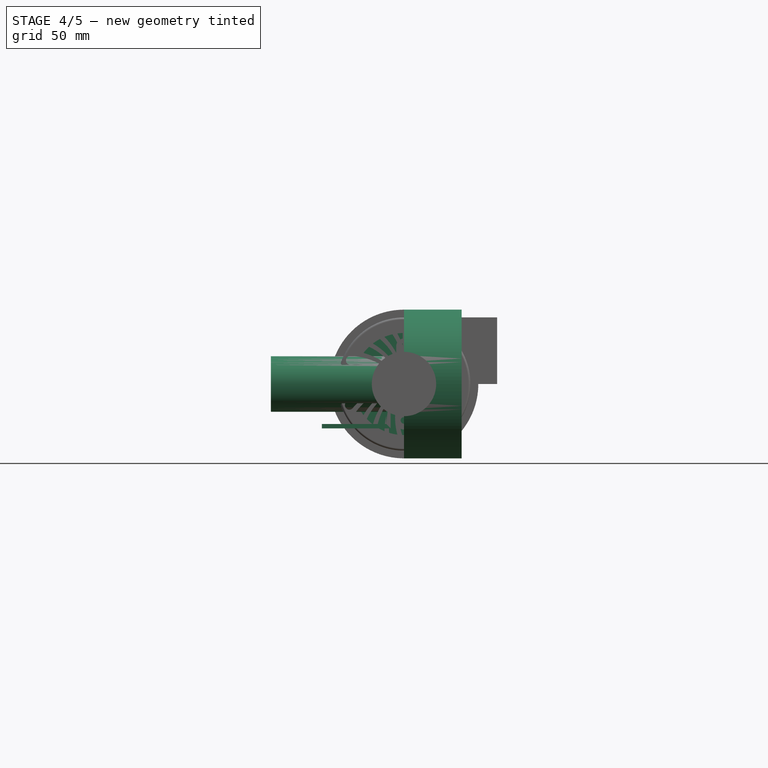
[diagram: stage 4 of 5 — front view after this stage's code; geometry added in this stage tinted green]
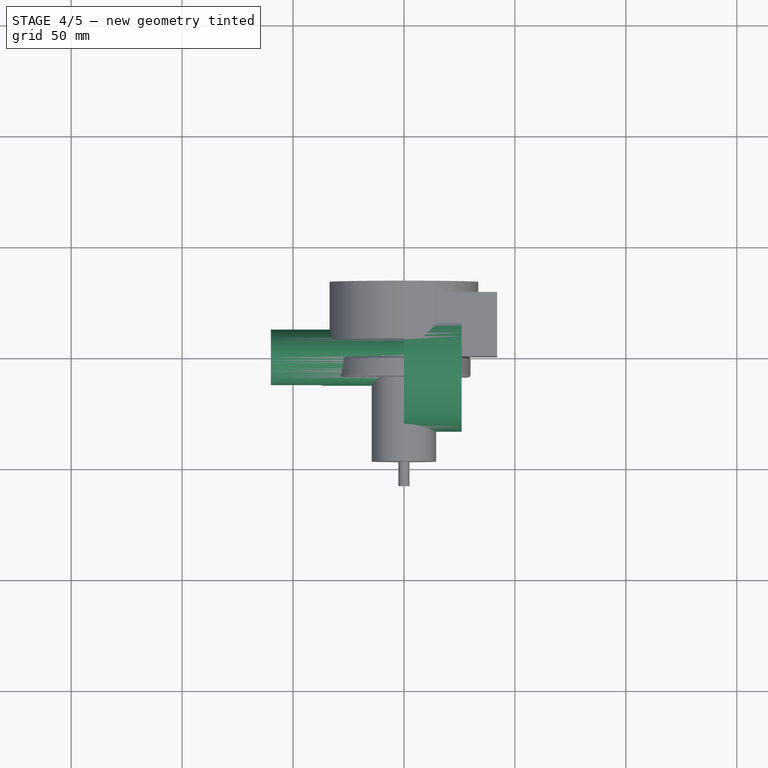
[diagram: stage 4 of 5 — top view after this stage's code; geometry added in this stage tinted green]
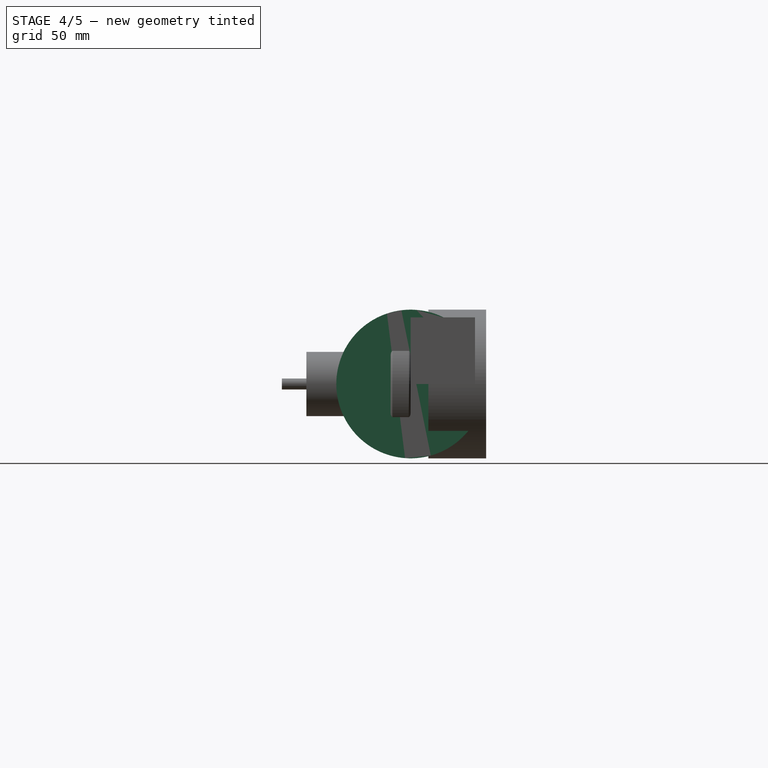
[diagram: stage 4 of 5 — right view after this stage's code; geometry added in this stage tinted green]
FEATURE [Sketcher::SketchObject] Sketch005
  ArcFitTolerance = 0
  AttachmentSupport = -> [YZ_Plane005]
  FullyConstrained = false
  MakeInternals = false
  MapMode = 5
  Placement = pos=(0,0,0) rot=(0.57735,0.57735,0.57735;2.0944rad)
  expr: Constraints[11] = <<dc_motor_dim>>.motor_diameter
  sketch-geometry (8):
    g0: ArcOfCircle CenterX=0 CenterY=0 CenterZ=0 NormalX=0 NormalY=0 NormalZ=1 AngleXU=0 Radius=12.5 StartAngle=0 EndAngle=3.14159
    g1: LineSegment [constr] StartX=-13.5 StartY=0 StartZ=0 EndX=13.5 EndY=0 EndZ=0
    g2: LineSegment StartX=13.5 StartY=0 StartZ=0 EndX=13.5 EndY=13.5 EndZ=0
    g3: LineSegment StartX=13.5 StartY=13.5 StartZ=0 EndX=-13.5 EndY=13.5 EndZ=0
    g4: LineSegment StartX=-13.5 StartY=13.5 StartZ=0 EndX=-13.5 EndY=0 EndZ=0
    g5: GeomPoint [constr] X=1.6e-15 Y=12.5 Z=0
    g6: LineSegment StartX=-13.5 StartY=0 StartZ=0 EndX=-12.5 EndY=1.5e-15 EndZ=0
    g7: LineSegment StartX=12.5 StartY=0 StartZ=0 EndX=13.5 EndY=0 EndZ=0
  constraints (21):
    c: Coincident(g0,g-1)
    c: PointOnObject(g0,g-1)
    c: Coincident(g1,g2)
    c: Coincident(g2,g3)
    c: Coincident(g3,g4)
    c: Coincident(g4,g1)
    c: Horizontal(g1)
    c: Horizontal(g3)
    c: Vertical(g2)
    c: Vertical(g4)
    c: PointOnObject(g5,g0)
    c: Diameter(g0) = 25
    c: PointOnObject(g2,g-1)
    c: DistanceY(g5,g2) = 1
    c: DistanceX(g0,g2) = 1
    c: DistanceX(g4,g0) = 1
    c: Coincident(g6,g4)
    c: Coincident(g7,g0)
    c: Coincident(g7,g2)
    c: Horizontal(g7)
    c: Coincident(g6,g0)
FEATURE [Sketcher::SketchObject] Sketch004
  ArcFitTolerance = 0
  AttachmentSupport = -> [XZ_Plane005]
  FullyConstrained = true
  MakeInternals = false
  MapMode = 5
  Placement = pos=(0,0,0) rot=(1,0,0;1.5708rad)
  expr: Constraints[12] = <<dc_motor_dim>>.motor_diameter / 2 + 20
  sketch-geometry (6):
    g0: LineSegment StartX=-6 StartY=12.5 StartZ=0 EndX=-6 EndY=-20 EndZ=0
    g1: LineSegment StartX=-6 StartY=-20 StartZ=0 EndX=-37 EndY=-20 EndZ=0
    g2: LineSegment StartX=-37 StartY=-20 StartZ=0 EndX=-37 EndY=-18 EndZ=0
    g3: LineSegment StartX=-37 StartY=-18 StartZ=0 EndX=-8 EndY=-18 EndZ=0
    g4: LineSegment StartX=-8 StartY=-18 StartZ=0 EndX=-8 EndY=12.5 EndZ=0
    g5: LineSegment StartX=-6 StartY=12.5 StartZ=0 EndX=-8 EndY=12.5 EndZ=0
  constraints (18):
    c: Vertical(g0)
    c: Coincident(g1,g0)
    c: Horizontal(g1)
    c: Coincident(g2,g1)
    c: Coincident(g3,g2)
    c: Horizontal(g3)
    c: Vertical(g2)
    c: Coincident(g4,g3)
    c: Vertical(g4)
    c: Distance(g2) = 2
    c: DistanceX(g0,g-1) = 6
    c: DistanceY(g0,g-1) = 20
    c: Distance(g0) = 32.5
    c: Coincident(g5,g0)
    c: Horizontal(g5)
    c: Coincident(g4,g5)
    c: DistanceX(g4,g-1) = 8
    c: Distance(g1) = 31
FEATURE [Sketcher::SketchObject] Sketch003
  ArcFitTolerance = 0
  AttachmentSupport = -> [YZ_Plane005]
  FullyConstrained = true
  MakeInternals = false
  MapMode = 5
  Placement = pos=(0,0,0) rot=(0.57735,0.57735,0.57735;2.0944rad)
  expr: Constraints[1] = <<dc_motor_dim>>.motor_diameter
  sketch-geometry (1):
    g0: Circle CenterX=0 CenterY=0 CenterZ=0 NormalX=0 NormalY=0 NormalZ=1 AngleXU=0 Radius=12.5
  constraints (2):
    c: Coincident(g0,g-1)
    c: Diameter(g0) = 25
FEATURE [Sketcher::SketchObject] Sketch002
  ArcFitTolerance = 0
  AttachmentSupport = -> [YZ_Plane005]
  FullyConstrained = true
  MakeInternals = false
  MapMode = 5
  Placement = pos=(0,0,0) rot=(0.57735,0.57735,0.57735;2.0944rad)
  expr: Constraints[1] = <<dc_motor_dim>>.wheel_diameter
  sketch-geometry (1):
    g0: Circle CenterX=0 CenterY=0 CenterZ=0 NormalX=0 NormalY=0 NormalZ=1 AngleXU=0 Radius=33.5
  constraints (2):
    c: Coincident(g0,g-1)
    c: Diameter(g0) = 67
FEATURE [PartDesign::Pad] Pad002
  Direction = (1,0,0)
  Length = 26
  Length2 = 10
  Placement = pos=(0,0,0) rot=(0.57735,0.57735,0.57735;2.0944rad)
  Profile = -> Sketch002
  ReferenceAxis = -> Sketch002 [N_Axis]
  Suppressed = false
  Type = 0
  expr: Length = <<dc_motor_dim>>.wheel_width
FEATURE [PartDesign::Pad] Pad003
  BaseFeature = -> Pad002
  Direction = (1,0,0)
  Length = 60
  Length2 = 10
  Placement = pos=(0,0,0) rot=(0.57735,0.57735,0.57735;2.0944rad)
  Profile = -> Sketch003
  ReferenceAxis = -> Sketch003 [N_Axis]
  Reversed = true
  Suppressed = false
  Type = 0
  expr: Length = <<dc_motor_dim>>.motor_length
FEATURE [PartDesign::Pad] Pad004
  BaseFeature = -> Pad003
  Direction = (0,-1,2e-16)
  Length = 25
  Length2 = 10
  Midplane = true
  Placement = pos=(0,0,0) rot=(0.57735,0.57735,0.57735;2.0944rad)
  Profile = -> Sketch004
  ReferenceAxis = -> Sketch004 [N_Axis]
  Suppressed = false
  Type = 0
  expr: Length = <<dc_motor_dim>>.motor_diameter
FEATURE [PartDesign::Pocket] Pocket
  BaseFeature = -> Pad004
  Direction = (-1,0,0)
  Length = 10
  Length2 = 5
  Placement = pos=(0,0,0) rot=(0.57735,0.57735,0.57735;2.0944rad)
  Profile = -> Sketch005
  ReferenceAxis = -> Sketch005 [N_Axis]
  Suppressed = false
  Type = 0
FEATURE [PartDesign::Pocket] Pocket014
  BaseFeature = -> Pocket013
  Direction = (0,1,-2e-16)
  Length = 11
  Length2 = 5
  Placement = pos=(0,0,0) rot=(1,0,0;1.5708rad)
  Profile = -> Sketch036
  ReferenceAxis = -> Sketch036 [N_Axis]
  Suppressed = false
  Type = 0
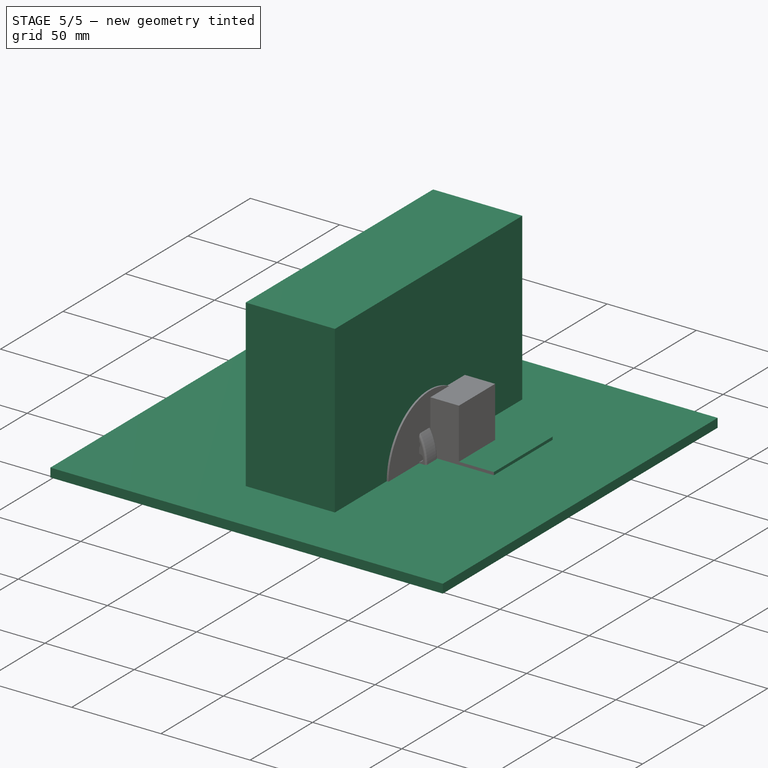
[diagram: stage 5 of 5 — iso view after this stage's code; geometry added in this stage tinted green]
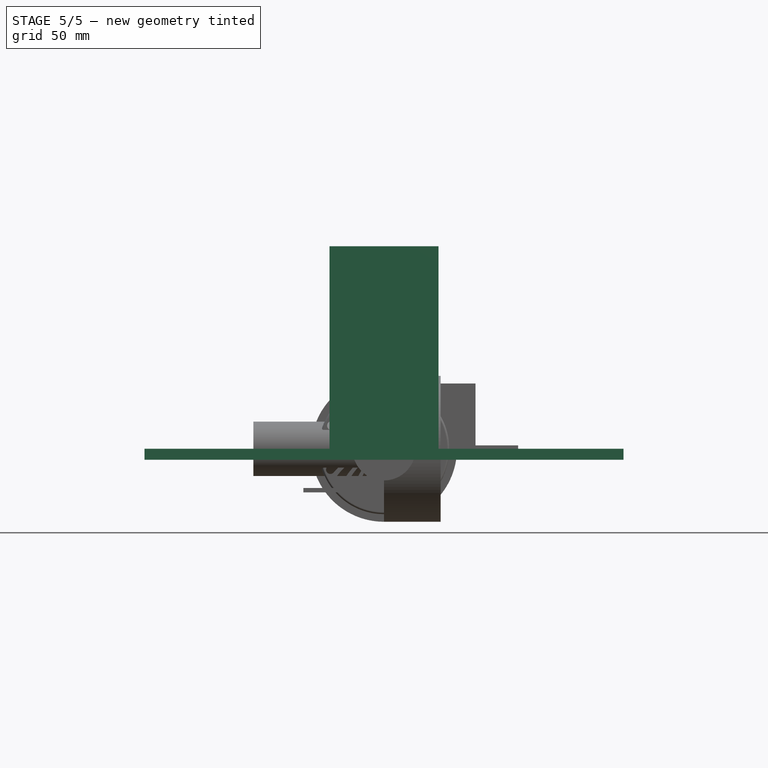
[diagram: stage 5 of 5 — front view after this stage's code; geometry added in this stage tinted green]
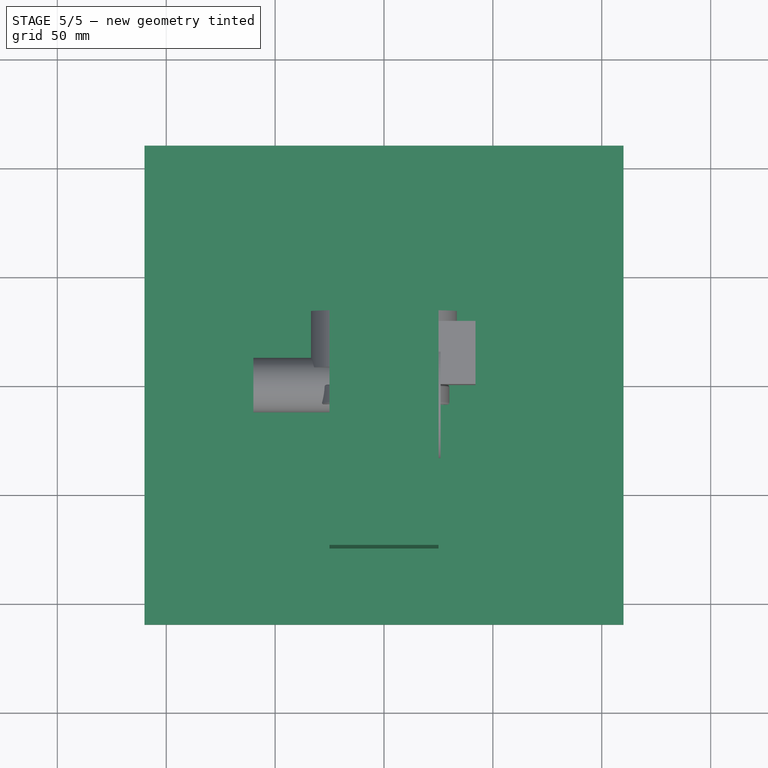
[diagram: stage 5 of 5 — top view after this stage's code; geometry added in this stage tinted green]
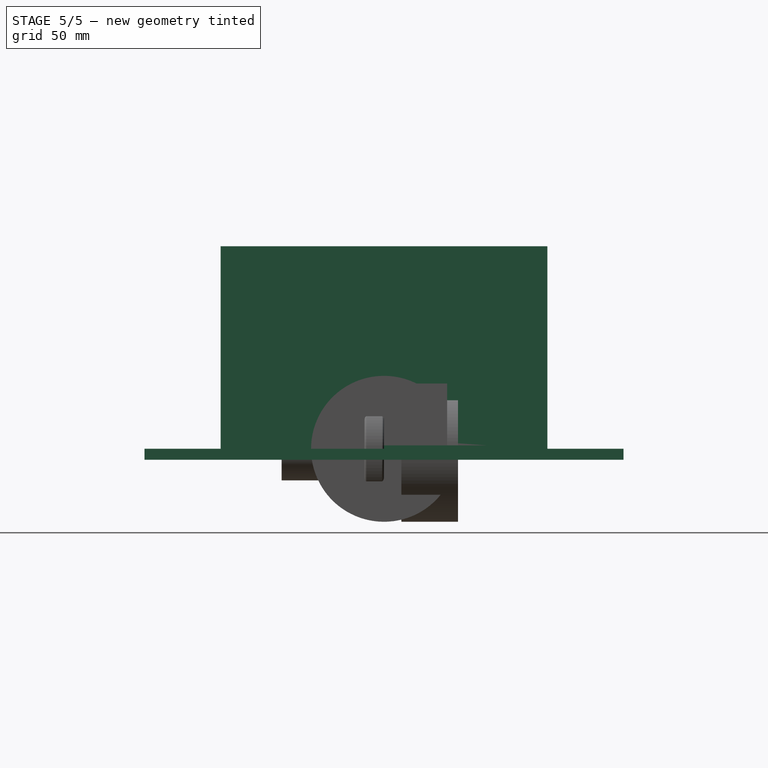
[diagram: stage 5 of 5 — right view after this stage's code; geometry added in this stage tinted green]
FEATURE [Sketcher::SketchObject] Sketch024
  ArcFitTolerance = 0
  AttachmentSupport = -> [Pocket]
  FullyConstrained = true
  MakeInternals = false
  MapMode = 5
  Placement = pos=(0,-8.8e-15,-20) rot=(0.707107,0.707107,0;3.14159rad)
  expr: Constraints[13] = <<dc_motor_dim>>.bracket_hole_diameter
  expr: Constraints[14] = <<dc_motor_dim>>.bracket_hole_width
  expr: Constraints[15] = <<dc_motor_dim>>.bracket_hole_length
  expr: Constraints[27] = <<dc_motor_dim>>.bracket_length / 2 + <<dc_motor_dim>>.bracket_thickness - 2.5
  sketch-geometry (12):
    g0: Circle CenterX=8 CenterY=-15.5 CenterZ=0 NormalX=0 NormalY=0 NormalZ=1 AngleXU=0 Radius=2
    g1: Circle CenterX=-8 CenterY=-15.5 CenterZ=0 NormalX=0 NormalY=0 NormalZ=1 AngleXU=0 Radius=2
    g2: Circle CenterX=-8 CenterY=-29.5 CenterZ=0 NormalX=0 NormalY=0 NormalZ=1 AngleXU=0 Radius=2
    g3: Circle CenterX=8 CenterY=-29.5 CenterZ=0 NormalX=0 NormalY=0 NormalZ=1 AngleXU=0 Radius=2
    g4: LineSegment [constr] StartX=-8 StartY=-15.5 StartZ=0 EndX=-8 EndY=-29.5 EndZ=0
    g5: LineSegment [constr] StartX=-8 StartY=-29.5 StartZ=0 EndX=8 EndY=-29.5 EndZ=0
    g6: LineSegment [constr] StartX=-8 StartY=-15.5 StartZ=0 EndX=8 EndY=-15.5 EndZ=0
    g7: GeomPoint [constr] X=0 Y=-15.5 Z=0
    g8: LineSegment [constr] StartX=0 StartY=-15.5 StartZ=0 EndX=0 EndY=-8 EndZ=0
    g9: LineSegment [constr] StartX=0 StartY=-8 StartZ=0 EndX=0 EndY=0 EndZ=0
    g10: LineSegment [constr] StartX=0 StartY=-15.5 StartZ=0 EndX=0 EndY=-29.5 EndZ=0
    g11: GeomPoint [constr] X=0 Y=-22.5 Z=0
  constraints (28):
    c: Equal(g1,g0)
    c: Equal(g0,g2)
    c: Equal(g2,g3)
    c: Coincident(g4,g1)
    c: Coincident(g4,g2)
    c: Coincident(g5,g2)
    c: Coincident(g5,g3)
    c: Coincident(g6,g1)
    c: Coincident(g6,g0)
    c: Horizontal(g6)
    c: Vertical(g4)
    c: Horizontal(g5)
    c: Equal(g6,g5)
    c: Diameter(g1) = 4
    c: Distance(g6) = 16
    c: Distance(g4) = 14
    c: Symmetric(g6,g6,g7)
    c: PointOnObject(g7,g-2)
    c: Coincident(g8,g7)
    c: Coincident(g9,g-1)
    c: Coincident(g8,g9)
    c: Vertical(g9)
    c: Distance(g9) = 8
    c: Coincident(g10,g7)
    c: PointOnObject(g10,g5)
    c: Vertical(g10)
    c: Symmetric(g10,g10,g11)
    c: DistanceY(g11,g8) = 14.5
FEATURE [PartDesign::Pocket] Pocket007
  BaseFeature = -> Pocket
  Direction = (0,0,1)
  Length = 2
  Length2 = 5
  Placement = pos=(0,0,0) rot=(0.57735,0.57735,0.57735;2.0944rad)
  Profile = -> Sketch024
  ReferenceAxis = -> Sketch024 [N_Axis]
  Suppressed = false
  Type = 0
  expr: Length = <<dc_motor_dim>>.bracket_thickness
FEATURE [PartDesign::Body] Body016  label="Drone wheel 1"
  AllowCompound = false
  Group = -> [Sketch059,Pad036,Sketch060,Pocket022,PolarPattern,Sketch061,Pocket023,Fillet]
  Origin = -> Origin024
  Placement = pos=(-1,-101,23) rot=(0,0,1;0rad)
  Tip = -> Fillet
FEATURE [Sketcher::SketchObject] Sketch001
  ArcFitTolerance = 0
  AttachmentSupport = -> [XY_Plane004]
  FullyConstrained = false
  MakeInternals = false
  MapMode = 5
  expr: Constraints[14] = <<battery_dim>>.length
  expr: Constraints[15] = <<battery_dim>>.width
  sketch-geometry (8):
    g0: LineSegment StartX=-25 StartY=75 StartZ=0 EndX=25 EndY=75 EndZ=0
    g1: LineSegment StartX=25 StartY=75 StartZ=0 EndX=25 EndY=-75 EndZ=0
    g2: LineSegment StartX=25 StartY=-75 StartZ=0 EndX=-25 EndY=-75 EndZ=0
    g3: LineSegment StartX=-25 StartY=-75 StartZ=0 EndX=-25 EndY=75 EndZ=0
    g4: LineSegment [constr] StartX=-25 StartY=-1e-16 StartZ=0 EndX=25 EndY=-1e-16 EndZ=0
    g5: GeomPoint [constr] X=-0.40862 Y=1.74876 Z=0
    g6: GeomPoint [constr] X=0 Y=75 Z=0
    g7: GeomPoint [constr] X=0 Y=-75 Z=0
  constraints (16):
    c: Coincident(g0,g1)
    c: Coincident(g1,g2)
    c: Coincident(g2,g3)
    c: Coincident(g3,g0)
    c: Horizontal(g0)
    c: Horizontal(g2)
    c: Vertical(g1)
    c: Vertical(g3)
    c: PointOnObject(g4,g1)
    c: Horizontal(g4)
    c: Symmetric(g0,g0,g6)
    c: Symmetric(g2,g1,g7)
    c: Symmetric(g7,g6,g-1)
    c: Symmetric(g0,g2,g4)
    c: Distance(g3) = 150
    c: Distance(g2) = 50
FEATURE [PartDesign::Pad] Pad001
  Direction = (0,0,1)
  Length = 93
  Length2 = 10
  Profile = -> Sketch001
  ReferenceAxis = -> Sketch001 [N_Axis]
  Suppressed = false
  Type = 0
  expr: Length = <<battery_dim>>.height
FEATURE [PartDesign::Body] Body001  label="Battery V1"
  AllowCompound = false
  Group = -> [Sketch001,Pad001]
  Origin = -> Origin004
  Tip = -> Pad001
FEATURE [App::Link] Link  label="Battery V2"
  LinkPlacement = pos=(4.06504e-05,-46.5,20) rot=(0.57735,0.57735,0.57735;4.18879rad)
  LinkedObject = -> Body001
  Placement = pos=(4.06504e-05,-46.5,20) rot=(0.57735,0.57735,0.57735;4.18879rad)
FEATURE [Sketcher::SketchObject] Sketch016
  ArcFitTolerance = 0
  AttachmentSupport = -> [XY_Plane010]
  FullyConstrained = true
  MakeInternals = false
  MapMode = 5
  expr: Constraints[11] = <<ender3_dim>>.width
  expr: Constraints[12] = <<ender3_dim>>.height
  sketch-geometry (6):
    g0: LineSegment StartX=-110 StartY=110 StartZ=0 EndX=110 EndY=110 EndZ=0
    g1: LineSegment StartX=110 StartY=110 StartZ=0 EndX=110 EndY=-110 EndZ=0
    g2: LineSegment StartX=110 StartY=-110 StartZ=0 EndX=-110 EndY=-110 EndZ=0
    g3: LineSegment StartX=-110 StartY=-110 StartZ=0 EndX=-110 EndY=110 EndZ=0
    g4: GeomPoint [constr] X=2.7e-15 Y=-110 Z=0
    g5: GeomPoint [constr] X=-2.7e-15 Y=110 Z=0
  constraints (13):
    c: Coincident(g0,g1)
    c: Coincident(g1,g2)
    c: Coincident(g2,g3)
    c: Coincident(g3,g0)
    c: Horizontal(g0)
    c: Horizontal(g2)
    c: Vertical(g1)
    c: Vertical(g3)
    c: Symmetric(g0,g0,g5)
    c: Symmetric(g2,g1,g4)
    c: Symmetric(g4,g5,g-1)
    c: Distance(g0) = 220
    c: Distance(g1) = 220
FEATURE [PartDesign::Pad] Pad013
  Direction = (0,0,1)
  Length = 5
  Length2 = 10
  Profile = -> Sketch016
  ReferenceAxis = -> Sketch016 [N_Axis]
  Reversed = true
  Suppressed = false
  Type = 0
FEATURE [PartDesign::Body] Body005  label="plate"
  AllowCompound = false
  Group = -> [Sketch016,Pad013]
  Origin = -> Origin010
  Tip = -> Pad013
FEATURE [Sketcher::SketchObject] Sketch022
  ArcFitTolerance = 0
  AttachmentSupport = -> [XY_Plane012]
  FullyConstrained = true
  MakeInternals = false
  MapMode = 5
  sketch-geometry (7):
    g0: LineSegment StartX=0 StartY=0 StartZ=0 EndX=61.6 EndY=0 EndZ=0
    g1: LineSegment StartX=61.6 StartY=0 StartZ=0 EndX=61.6 EndY=47 EndZ=0
    g2: LineSegment StartX=61.6 StartY=47 StartZ=0 EndX=0 EndY=47 EndZ=0
    g3: LineSegment StartX=0 StartY=47 StartZ=0 EndX=0 EndY=0 EndZ=0
    g4: Circle CenterX=3.175 CenterY=3.175 CenterZ=0 NormalX=0 NormalY=0 NormalZ=1 AngleXU=0 Radius=1.1
    g5: Circle CenterX=3.175 CenterY=22.86 CenterZ=0 NormalX=0 NormalY=0 NormalZ=1 AngleXU=0 Radius=1.1
    g6: Circle CenterX=29.845 CenterY=3.175 CenterZ=0 NormalX=0 NormalY=0 NormalZ=1 AngleXU=0 Radius=1.1
  constraints (20):
    c: Coincident(g0,g1)
    c: Coincident(g1,g2)
    c: Coincident(g2,g3)
    c: Coincident(g3,g0)
    c: Horizontal(g0)
    c: Horizontal(g2)
    c: Vertical(g1)
    c: Vertical(g3)
    c: Coincident(g0,g-1)
    c: Distance(g0) = 61.6
    c: Distance(g1) = 47
    c: Equal(g6,g4)
    c: Equal(g4,g5)
    c: Diameter(g4) = 2.2
    c: DistanceX(g0,g4) = 3.175
    c: DistanceX(g4,g5) = 0
    c: DistanceY(g0,g4) = 3.175
    c: DistanceY(g4,g6) = 0
    c: DistanceY(g0,g5) = 22.86
    c: DistanceX(g0,g6) = 29.845
FEATURE [PartDesign::Pad] Pad015
  Direction = (0,0,1)
  Length = 1.6
  Length2 = 10
  Profile = -> Sketch022
  ReferenceAxis = -> Sketch022 [N_Axis]
  Suppressed = false
  Type = 0
FEATURE [PartDesign::Body] Body006  label="PCB plate"
  AllowCompound = false
  Group = -> [Sketch022,Pad015]
  Origin = -> Origin012
  Tip = -> Pad015
FEATURE [Sketcher::SketchObject] Sketch023
  ArcFitTolerance = 0
  AttachmentSupport = -> [Pad015]
  FullyConstrained = true
  MakeInternals = false
  MapMode = 5
  Placement = pos=(0,0,1.6) rot=(0,0,1;0rad)
  expr: Constraints[10] = 3.21 + 47
  sketch-geometry (4):
    g0: LineSegment StartX=8.6 StartY=50.21 StartZ=0 EndX=26.6 EndY=50.21 EndZ=0
    g1: LineSegment StartX=26.6 StartY=50.21 StartZ=0 EndX=26.6 EndY=24.465 EndZ=0
    g2: LineSegment StartX=26.6 StartY=24.465 StartZ=0 EndX=8.6 EndY=24.465 EndZ=0
    g3: LineSegment StartX=8.6 StartY=24.465 StartZ=0 EndX=8.6 EndY=50.21 EndZ=0
  constraints (12):
    c: Coincident(g0,g1)
    c: Coincident(g1,g2)
    c: Coincident(g2,g3)
    c: Coincident(g3,g0)
    c: Horizontal(g0)
    c: Horizontal(g2)
    c: Vertical(g1)
    c: Vertical(g3)
    c: Distance(g0) = 18
    c: DistanceX(g-1,g2) = 8.6
    c: DistanceY(g-1,g0) = 50.21
    c: Distance(g3) = 25.745
FEATURE [PartDesign::Pad] Pad016
  Direction = (0,0,1)
  Length = 1.6
  Length2 = 10
  Profile = -> Sketch023
  ReferenceAxis = -> Sketch023 [N_Axis]
  Suppressed = false
  Type = 0
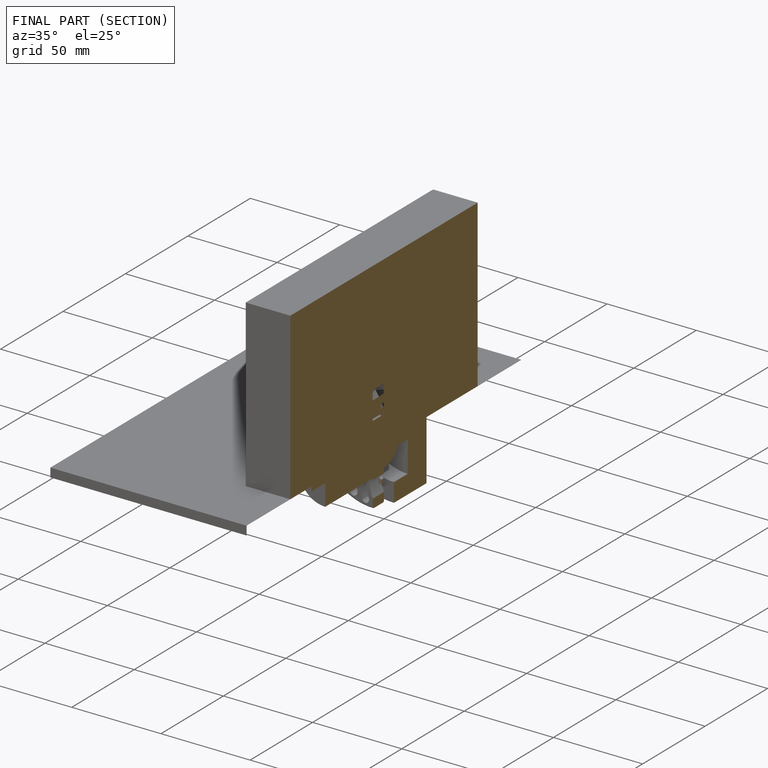
[diagram: finished part — half-section view (interior)]
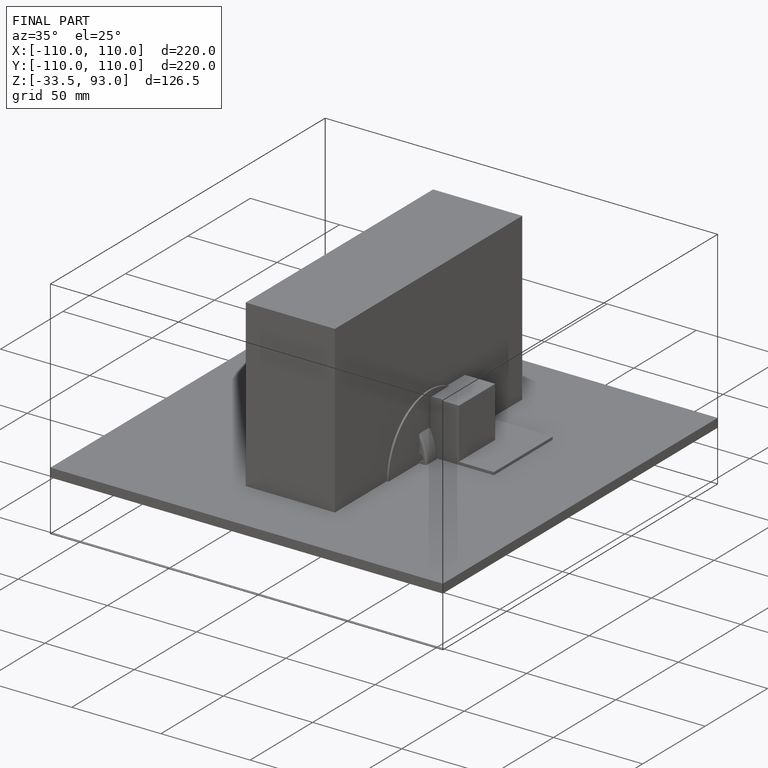
[diagram: finished part — iso view with bounding-box wireframe]
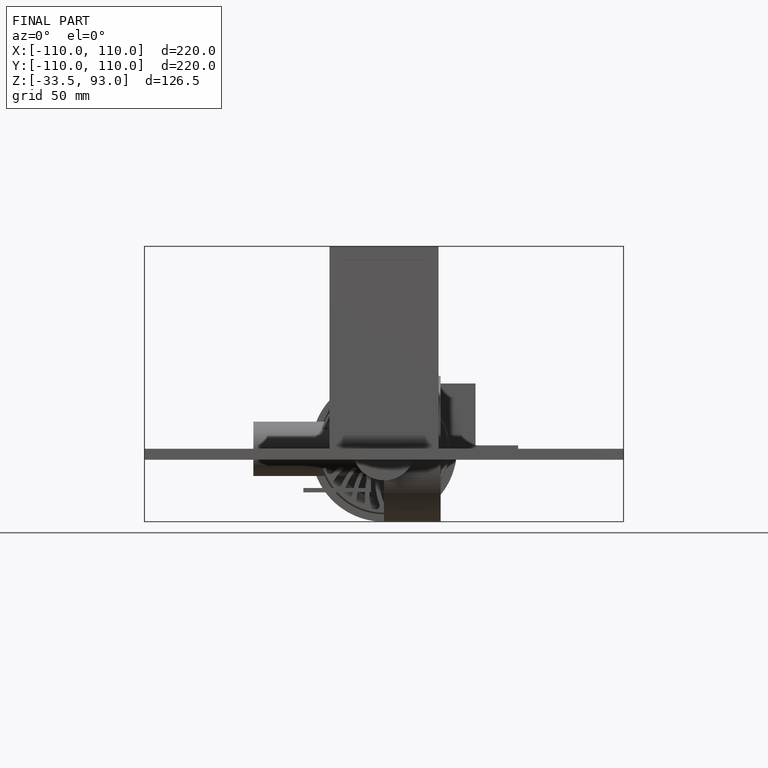
[diagram: finished part — front view with bounding-box wireframe]
